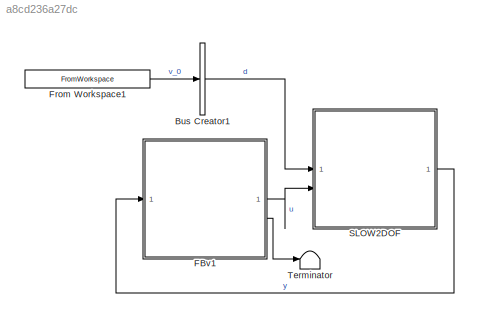
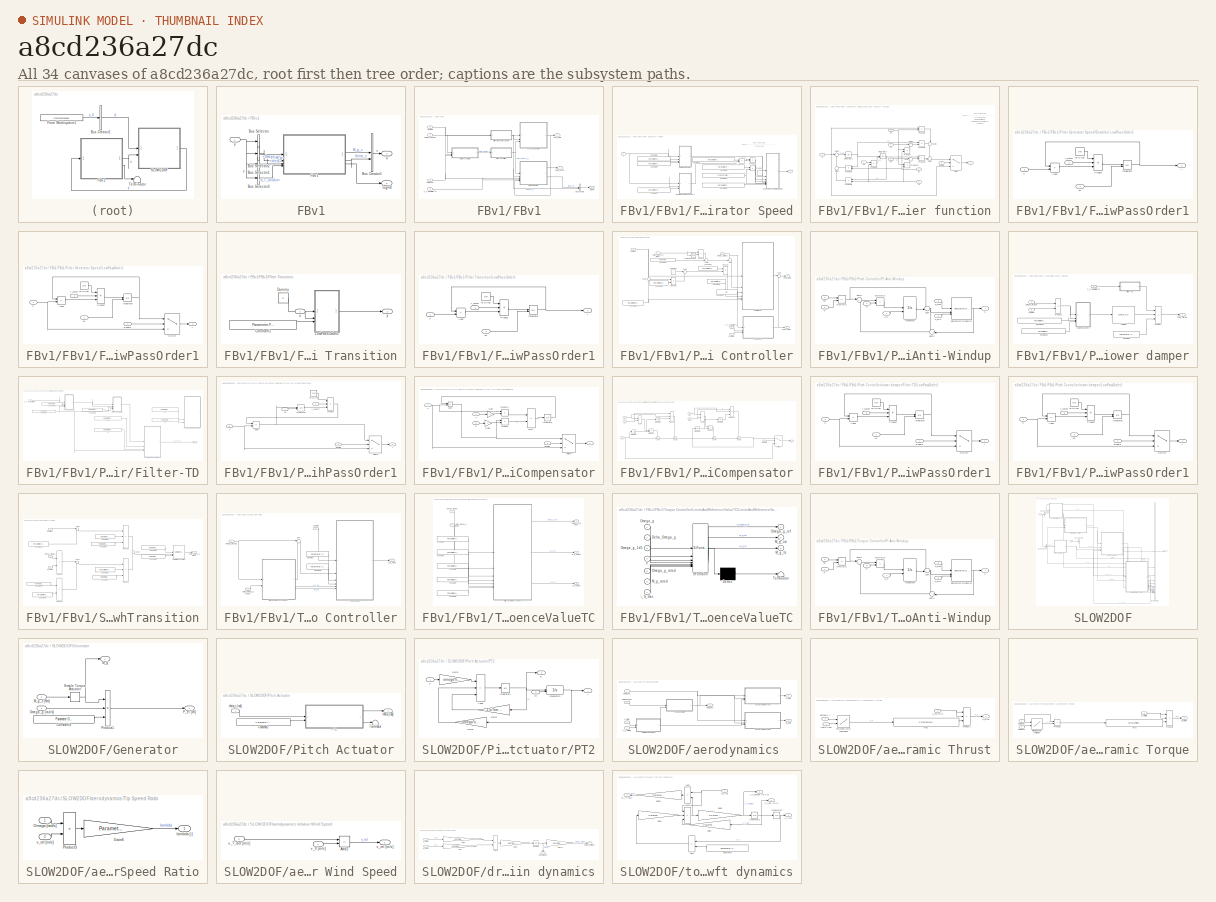
[diagram: thumbnail index - all 34 canvases of the model, root first then tree order]
MODEL mdl_a8cd236a27dc
KIND model
CONFIG AbsTol = auto
CONFIG EnableMultiTasking = off
CONFIG FixedStep = Parameter.Time.dt
CONFIG MaxStep = auto
CONFIG MinStep = auto
CONFIG RelTol = 1e-3
CONFIG SampleTimeConstraint = Unconstrained
CONFIG SolverName = FixedStepAuto
CONFIG StartTime = 0.0
CONFIG StopTime = Parameter.Time.TMax
BLOCK [BusCreator] Bus Creator1
  DisplayOption = bar
  InheritFromInputs = on
  Inputs = 1
BLOCK [SubSystem] FBv1
BLOCK [BusCreator] FBv1/Bus Creator1
  DisplayOption = bar
  InheritFromInputs = on
  Inputs = 2
BLOCK [BusSelector] FBv1/Bus Selector
  OutputSignals = Omega_g
BLOCK [BusSelector] FBv1/Bus Selector1
  OutputSignals = theta
BLOCK [BusSelector] FBv1/Bus Selector2
  OutputSignals = M_g
BLOCK [BusSelector] FBv1/Bus Selector3
  OutputSignals = x_T_dotdot
BLOCK [SubSystem] FBv1/FBv1
BLOCK [BusCreator] FBv1/FBv1/Bus Creator
  DisplayOption = bar
  InheritFromInputs = on
  Inputs = 2
BLOCK [SubSystem] FBv1/FBv1/Filter Generator Speed
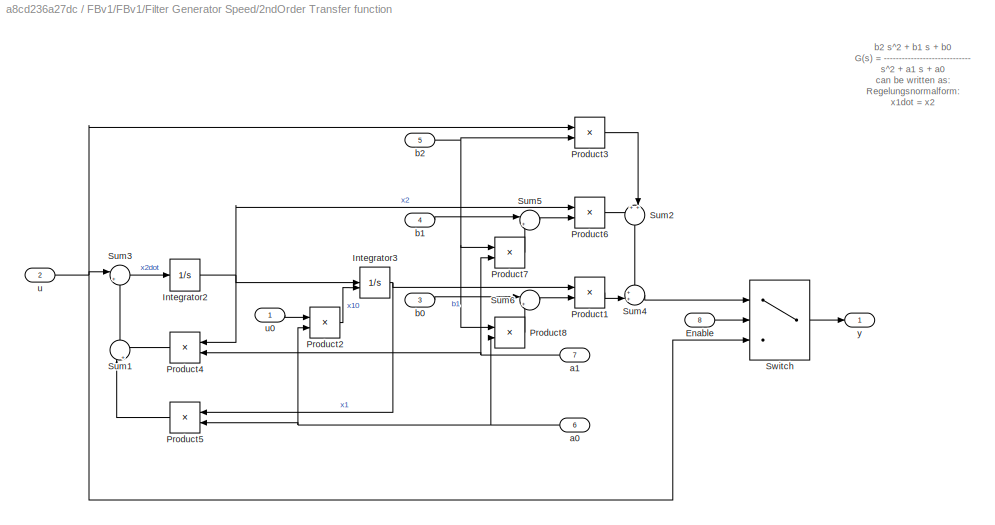
BLOCK [SubSystem] FBv1/FBv1/Filter Generator Speed/2ndOrder Transfer function
BLOCK [Inport] FBv1/FBv1/Filter Generator Speed/2ndOrder Transfer function/Enable
  Port = 8
BLOCK [Integrator] FBv1/FBv1/Filter Generator Speed/2ndOrder Transfer function/Integrator2
BLOCK [Integrator] FBv1/FBv1/Filter Generator Speed/2ndOrder Transfer function/Integrator3
  InitialConditionSource = external
BLOCK [Product] FBv1/FBv1/Filter Generator Speed/2ndOrder Transfer function/Product1
  RndMeth = Zero
BLOCK [Product] FBv1/FBv1/Filter Generator Speed/2ndOrder Transfer function/Product2
  Inputs = */
  NameLocation = top
  RndMeth = Zero
BLOCK [Product] FBv1/FBv1/Filter Generator Speed/2ndOrder Transfer function/Product3
  RndMeth = Zero
BLOCK [Product] FBv1/FBv1/Filter Generator Speed/2ndOrder Transfer function/Product4
  NameLocation = top
  RndMeth = Zero
BLOCK [Product] FBv1/FBv1/Filter Generator Speed/2ndOrder Transfer function/Product5
  NameLocation = top
  RndMeth = Zero
BLOCK [Product] FBv1/FBv1/Filter Generator Speed/2ndOrder Transfer function/Product6
  RndMeth = Zero
BLOCK [Product] FBv1/FBv1/Filter Generator Speed/2ndOrder Transfer function/Product7
  RndMeth = Zero
BLOCK [Product] FBv1/FBv1/Filter Generator Speed/2ndOrder Transfer function/Product8
  RndMeth = Zero
BLOCK [Sum] FBv1/FBv1/Filter Generator Speed/2ndOrder Transfer function/Sum1
  Inputs = |++
  NameLocation = left
BLOCK [Sum] FBv1/FBv1/Filter Generator Speed/2ndOrder Transfer function/Sum2
  Inputs = ++|
  NameLocation = left
BLOCK [Sum] FBv1/FBv1/Filter Generator Speed/2ndOrder Transfer function/Sum3
  Inputs = |+-
BLOCK [Sum] FBv1/FBv1/Filter Generator Speed/2ndOrder Transfer function/Sum4
  Inputs = ++|
BLOCK [Sum] FBv1/FBv1/Filter Generator Speed/2ndOrder Transfer function/Sum5
  Inputs = |+-
BLOCK [Sum] FBv1/FBv1/Filter Generator Speed/2ndOrder Transfer function/Sum6
  Inputs = |+-
BLOCK [Switch] FBv1/FBv1/Filter Generator Speed/2ndOrder Transfer function/Switch
  Criteria = u2 > Threshold
  InputSameDT = off
  SaturateOnIntegerOverflow = off
  Threshold = 0.5
BLOCK [Inport] FBv1/FBv1/Filter Generator Speed/2ndOrder Transfer function/a0
  Port = 6
BLOCK [Inport] FBv1/FBv1/Filter Generator Speed/2ndOrder Transfer function/a1
  Port = 7
BLOCK [Inport] FBv1/FBv1/Filter Generator Speed/2ndOrder Transfer function/b0
  Port = 3
BLOCK [Inport] FBv1/FBv1/Filter Generator Speed/2ndOrder Transfer function/b1
  Port = 4
BLOCK [Inport] FBv1/FBv1/Filter Generator Speed/2ndOrder Transfer function/b2
  Port = 5
BLOCK [Inport] FBv1/FBv1/Filter Generator Speed/2ndOrder Transfer function/u
  Port = 2
BLOCK [Inport] FBv1/FBv1/Filter Generator Speed/2ndOrder Transfer function/u0
BLOCK [Outport] FBv1/FBv1/Filter Generator Speed/2ndOrder Transfer function/y
BLOCK [Constant] FBv1/FBv1/Filter Generator Speed/Constant
BLOCK [Constant] FBv1/FBv1/Filter Generator Speed/Constant1
  Value = Parameter.Filter.LowPass.f_cutoff
BLOCK [Constant] FBv1/FBv1/Filter Generator Speed/Constant2
  Value = Parameter.Filter.NotchFilter.Gain
BLOCK [Constant] FBv1/FBv1/Filter Generator Speed/Constant3
  Value = Parameter.Filter.LowPass.Enable
BLOCK [Constant] FBv1/FBv1/Filter Generator Speed/Constant4
  Value = 2*pi*Parameter.Filter.NotchFilter.BW
BLOCK [Constant] FBv1/FBv1/Filter Generator Speed/Constant5
  Value = Parameter.Filter.NotchFilter.Enable
BLOCK [Constant] FBv1/FBv1/Filter Generator Speed/Constant6
  Value = Parameter.Filter.NotchFilter.D
BLOCK [Constant] FBv1/FBv1/Filter Generator Speed/Constant7
  Value = Parameter.Filter.LowPass3.f_cutoff
BLOCK [SubSystem] FBv1/FBv1/Filter Generator Speed/Enabled LowPassOrder1
BLOCK [Sum] FBv1/FBv1/Filter Generator Speed/Enabled LowPassOrder1/Add3
  IconShape = rectangular
  Inputs = -+
BLOCK [Integrator] FBv1/FBv1/Filter Generator Speed/Enabled LowPassOrder1/Integrator
  InitialConditionSource = external
BLOCK [Product] FBv1/FBv1/Filter Generator Speed/Enabled LowPassOrder1/Product
  Inputs = 3
  RndMeth = Zero
BLOCK [Inport] FBv1/FBv1/Filter Generator Speed/Enabled LowPassOrder1/f_cutoff
  Port = 3
BLOCK [Constant] FBv1/FBv1/Filter Generator Speed/Enabled LowPassOrder1/hz to rad
  Value = 2*pi
BLOCK [Inport] FBv1/FBv1/Filter Generator Speed/Enabled LowPassOrder1/u
  Port = 2
BLOCK [Inport] FBv1/FBv1/Filter Generator Speed/Enabled LowPassOrder1/u0
BLOCK [Outport] FBv1/FBv1/Filter Generator Speed/Enabled LowPassOrder1/y
BLOCK [SubSystem] FBv1/FBv1/Filter Generator Speed/LowPassOrder1
BLOCK [Sum] FBv1/FBv1/Filter Generator Speed/LowPassOrder1/Add3
  IconShape = rectangular
  Inputs = -+
BLOCK [Inport] FBv1/FBv1/Filter Generator Speed/LowPassOrder1/Enable
  Port = 4
BLOCK [Integrator] FBv1/FBv1/Filter Generator Speed/LowPassOrder1/Integrator
  InitialConditionSource = external
BLOCK [Product] FBv1/FBv1/Filter Generator Speed/LowPassOrder1/Product
  Inputs = 3
  RndMeth = Zero
BLOCK [Switch] FBv1/FBv1/Filter Generator Speed/LowPassOrder1/Switch
  Criteria = u2 > Threshold
  InputSameDT = off
  SaturateOnIntegerOverflow = off
  Threshold = 0.5
BLOCK [Inport] FBv1/FBv1/Filter Generator Speed/LowPassOrder1/f_cutoff
  Port = 3
BLOCK [Constant] FBv1/FBv1/Filter Generator Speed/LowPassOrder1/hz to rad
  Value = 2*pi
BLOCK [Inport] FBv1/FBv1/Filter Generator Speed/LowPassOrder1/u
  Port = 2
BLOCK [Inport] FBv1/FBv1/Filter Generator Speed/LowPassOrder1/u0
BLOCK [Outport] FBv1/FBv1/Filter Generator Speed/LowPassOrder1/y
BLOCK [Product] FBv1/FBv1/Filter Generator Speed/Product
  RndMeth = Zero
BLOCK [Product] FBv1/FBv1/Filter Generator Speed/Product1
  RndMeth = Zero
BLOCK [Product] FBv1/FBv1/Filter Generator Speed/Product2
  RndMeth = Zero
BLOCK [Inport] FBv1/FBv1/Filter Generator Speed/u
BLOCK [Outport] FBv1/FBv1/Filter Generator Speed/y
BLOCK [SubSystem] FBv1/FBv1/Filter Transition
BLOCK [Constant] FBv1/FBv1/Filter Transition/Constant1
  Value = Parameter.Filter.LowPass2.f_cutoff
BLOCK [Constant] FBv1/FBv1/Filter Transition/Dummy
  Value = 0
BLOCK [SubSystem] FBv1/FBv1/Filter Transition/LowPassOrder1
BLOCK [Sum] FBv1/FBv1/Filter Transition/LowPassOrder1/Add3
  IconShape = rectangular
  Inputs = -+
BLOCK [Integrator] FBv1/FBv1/Filter Transition/LowPassOrder1/Integrator
  InitialConditionSource = external
BLOCK [Product] FBv1/FBv1/Filter Transition/LowPassOrder1/Product
  Inputs = 3
  RndMeth = Zero
BLOCK [Inport] FBv1/FBv1/Filter Transition/LowPassOrder1/f_cutoff
  Port = 3
BLOCK [Constant] FBv1/FBv1/Filter Transition/LowPassOrder1/hz to rad
  Value = 2*pi
BLOCK [Inport] FBv1/FBv1/Filter Transition/LowPassOrder1/u
  Port = 2
BLOCK [Inport] FBv1/FBv1/Filter Transition/LowPassOrder1/u0
BLOCK [Outport] FBv1/FBv1/Filter Transition/LowPassOrder1/y
BLOCK [Inport] FBv1/FBv1/Filter Transition/u
BLOCK [Outport] FBv1/FBv1/Filter Transition/y
BLOCK [Inport] FBv1/FBv1/M_g [Nm]
  Port = 2
BLOCK [Outport] FBv1/FBv1/M_g_c [Nm]
BLOCK [Inport] FBv1/FBv1/Omega_g [rad//s]
BLOCK [SubSystem] FBv1/FBv1/Pitch Controller
BLOCK [Reference] FBv1/FBv1/Pitch Controller/Compare To Zero  REF=simulink/Logic and Bit
Operations/Compare
To Zero
  SourceBlock = simulink/Logic and Bit\nOperations/Compare\nTo Zero
  SourceType = Compare To Zero
BLOCK [Constant] FBv1/FBv1/Pitch Controller/Constant
BLOCK [Constant] FBv1/FBv1/Pitch Controller/Constant1
  Value = Parameter.CPC.Ti
BLOCK [Constant] FBv1/FBv1/Pitch Controller/Constant2
  Value = Parameter.CPC.theta_min
BLOCK [Constant] FBv1/FBv1/Pitch Controller/Constant3
  Value = inf
BLOCK [Constant] FBv1/FBv1/Pitch Controller/Constant4
  Value = Parameter.CPC.Omega_g_rated
BLOCK [Constant] FBv1/FBv1/Pitch Controller/Constant5
  Value = Parameter.CPC.kp
BLOCK [Constant] FBv1/FBv1/Pitch Controller/Constant6
  Value = Parameter.CPC.theta_K
BLOCK [Inport] FBv1/FBv1/Pitch Controller/Delta_Omega_g [rad//s]
BLOCK [Inport] FBv1/FBv1/Pitch Controller/M_g [Nm]
  Port = 5
BLOCK [Inport] FBv1/FBv1/Pitch Controller/Omega_g [rad//s]
  Port = 2
BLOCK [SubSystem] FBv1/FBv1/Pitch Controller/PI Anti-Windup
BLOCK [Integrator] FBv1/FBv1/Pitch Controller/PI Anti-Windup/Integrator
  InitialConditionSource = external
BLOCK [Product] FBv1/FBv1/Pitch Controller/PI Anti-Windup/Multiply1
  Inputs = **
BLOCK [Product] FBv1/FBv1/Pitch Controller/PI Anti-Windup/Multiply3
  Inputs = */
BLOCK [Reference] FBv1/FBv1/Pitch Controller/PI Anti-Windup/Saturation Dynamic1  REF=simulink/Discontinuities/Saturation
Dynamic
  SourceBlock = simulink/Discontinuities/Saturation\nDynamic
  SourceType = Saturation Dynamic
BLOCK [Sum] FBv1/FBv1/Pitch Controller/PI Anti-Windup/Sum
  Inputs = ++|
BLOCK [Sum] FBv1/FBv1/Pitch Controller/PI Anti-Windup/Sum1
  Inputs = -+|
  NameLocation = top
BLOCK [Sum] FBv1/FBv1/Pitch Controller/PI Anti-Windup/Sum2
  Inputs = |++
BLOCK [Inport] FBv1/FBv1/Pitch Controller/PI Anti-Windup/Ti
  Port = 4
BLOCK [Inport] FBv1/FBv1/Pitch Controller/PI Anti-Windup/e
  Port = 2
BLOCK [Inport] FBv1/FBv1/Pitch Controller/PI Anti-Windup/kp
  Port = 3
BLOCK [Outport] FBv1/FBv1/Pitch Controller/PI Anti-Windup/u
BLOCK [Inport] FBv1/FBv1/Pitch Controller/PI Anti-Windup/u_max
  NameLocation = top
  Port = 5
BLOCK [Inport] FBv1/FBv1/Pitch Controller/PI Anti-Windup/u_min
  Port = 6
BLOCK [Inport] FBv1/FBv1/Pitch Controller/PI Anti-Windup/x_0
BLOCK [Product] FBv1/FBv1/Pitch Controller/Product1
  Inputs = */
BLOCK [Product] FBv1/FBv1/Pitch Controller/Product2
  Inputs = */
BLOCK [Product] FBv1/FBv1/Pitch Controller/Product3
BLOCK [Sum] FBv1/FBv1/Pitch Controller/Sum
  Inputs = +-|
BLOCK [Sum] FBv1/FBv1/Pitch Controller/Sum1
  Inputs = +|-
BLOCK [Sum] FBv1/FBv1/Pitch Controller/Sum2
  Inputs = -+|
BLOCK [Sum] FBv1/FBv1/Pitch Controller/Sum3
  Inputs = |++
BLOCK [Sum] FBv1/FBv1/Pitch Controller/Sum4
  Inputs = |++
BLOCK [Inport] FBv1/FBv1/Pitch Controller/theta [rad]
  Port = 3
BLOCK [Outport] FBv1/FBv1/Pitch Controller/theta_TD [rad]
  Port = 2
  VectorParamsAs1DForOutWhenUnconnected = off
BLOCK [Outport] FBv1/FBv1/Pitch Controller/theta_c [rad]
BLOCK [SubSystem] FBv1/FBv1/Pitch Controller/tower damper
BLOCK [Lookup_n-D] FBv1/FBv1/Pitch Controller/tower damper/Activation
  BreakpointsForDimension1 = Parameter.TD.Power
  ExtrapMethod = Clip
  IndexSearchMethod = Linear search
  InputPortMap = u0
  InternalRulePriority = Speed
  NumberOfTableDimensions = 1
  RndMeth = Simplest
  Table = Parameter.TD.Value
  UseLastTableValue = on
BLOCK [Constant] FBv1/FBv1/Pitch Controller/tower damper/Constant1
  Value = Parameter.TD.gain
BLOCK [Constant] FBv1/FBv1/Pitch Controller/tower damper/Constant10
  Value = Parameter.Filter.LowPassTowerDamper.f_cutoff
BLOCK [Constant] FBv1/FBv1/Pitch Controller/tower damper/Constant11
  Value = Parameter.Filter.LowPassTowerDamper.Enable
BLOCK [SubSystem] FBv1/FBv1/Pitch Controller/tower damper/Filter-TD
BLOCK [Constant] FBv1/FBv1/Pitch Controller/tower damper/Filter-TD/Constant
  Value = Parameter.TD.RealTD.Enable
BLOCK [Constant] FBv1/FBv1/Pitch Controller/tower damper/Filter-TD/Constant1
  Value = Parameter.TD.LowPass.f_cutoff
BLOCK [Constant] FBv1/FBv1/Pitch Controller/tower damper/Filter-TD/Constant2
  Value = Parameter.TD.HighPass.f_cutoff
BLOCK [SubSystem] FBv1/FBv1/Pitch Controller/tower damper/Filter-TD/HighPassOrder1
BLOCK [Sum] FBv1/FBv1/Pitch Controller/tower damper/Filter-TD/HighPassOrder1/Add3
  IconShape = rectangular
  Inputs = -+
BLOCK [Inport] FBv1/FBv1/Pitch Controller/tower damper/Filter-TD/HighPassOrder1/Enable
  Port = 3
BLOCK [Integrator] FBv1/FBv1/Pitch Controller/tower damper/Filter-TD/HighPassOrder1/Integrator
  InitialConditionSource = external
BLOCK [Product] FBv1/FBv1/Pitch Controller/tower damper/Filter-TD/HighPassOrder1/Product
  Inputs = 3
  RndMeth = Zero
BLOCK [Switch] FBv1/FBv1/Pitch Controller/tower damper/Filter-TD/HighPassOrder1/Switch
  Criteria = u2 > Threshold
  InputSameDT = off
  SaturateOnIntegerOverflow = off
  Threshold = 0.5
BLOCK [Inport] FBv1/FBv1/Pitch Controller/tower damper/Filter-TD/HighPassOrder1/f_cutoff
  Port = 4
BLOCK [Constant] FBv1/FBv1/Pitch Controller/tower damper/Filter-TD/HighPassOrder1/hz to rad
  Value = 2*pi
BLOCK [Inport] FBv1/FBv1/Pitch Controller/tower damper/Filter-TD/HighPassOrder1/u
  Port = 2
BLOCK [Inport] FBv1/FBv1/Pitch Controller/tower damper/Filter-TD/HighPassOrder1/u0
BLOCK [Outport] FBv1/FBv1/Pitch Controller/tower damper/Filter-TD/HighPassOrder1/y
  VectorParamsAs1DForOutWhenUnconnected = off
BLOCK [SubSystem] FBv1/FBv1/Pitch Controller/tower damper/Filter-TD/Lag-Compensator
BLOCK [Inport] FBv1/FBv1/Pitch Controller/tower damper/Filter-TD/Lag-Compensator/Enable
  Port = 4
BLOCK [Gain] FBv1/FBv1/Pitch Controller/tower damper/Filter-TD/Lag-Compensator/Gain
  Gain = -1
BLOCK [Gain] FBv1/FBv1/Pitch Controller/tower damper/Filter-TD/Lag-Compensator/Gain1
  Gain = -1
BLOCK [Integrator] FBv1/FBv1/Pitch Controller/tower damper/Filter-TD/Lag-Compensator/Integrator
BLOCK [Product] FBv1/FBv1/Pitch Controller/tower damper/Filter-TD/Lag-Compensator/Product
BLOCK [Product] FBv1/FBv1/Pitch Controller/tower damper/Filter-TD/Lag-Compensator/Product1
BLOCK [Sum] FBv1/FBv1/Pitch Controller/tower damper/Filter-TD/Lag-Compensator/Sum
  IconShape = rectangular
  Inputs = -+
BLOCK [Sum] FBv1/FBv1/Pitch Controller/tower damper/Filter-TD/Lag-Compensator/Sum1
  IconShape = rectangular
  Inputs = -+
BLOCK [Switch] FBv1/FBv1/Pitch Controller/tower damper/Filter-TD/Lag-Compensator/Switch
  Criteria = u2 > Threshold
  InputSameDT = off
  SaturateOnIntegerOverflow = off
  Threshold = 0.5
BLOCK [Inport] FBv1/FBv1/Pitch Controller/tower damper/Filter-TD/Lag-Compensator/X
BLOCK [Inport] FBv1/FBv1/Pitch Controller/tower damper/Filter-TD/Lag-Compensator/p
  Port = 2
BLOCK [Outport] FBv1/FBv1/Pitch Controller/tower damper/Filter-TD/Lag-Compensator/y
BLOCK [Inport] FBv1/FBv1/Pitch Controller/tower damper/Filter-TD/Lag-Compensator/z
  Port = 3
BLOCK [SubSystem] FBv1/FBv1/Pitch Controller/tower damper/Filter-TD/Lead-Lag-Compensator
  Commented = on
BLOCK [Inport] FBv1/FBv1/Pitch Controller/tower damper/Filter-TD/Lead-Lag-Compensator/Enable
  Port = 6
BLOCK [Integrator] FBv1/FBv1/Pitch Controller/tower damper/Filter-TD/Lead-Lag-Compensator/Integrator
BLOCK [Integrator] FBv1/FBv1/Pitch Controller/tower damper/Filter-TD/Lead-Lag-Compensator/Integrator1
BLOCK [Integrator] FBv1/FBv1/Pitch Controller/tower damper/Filter-TD/Lead-Lag-Compensator/Integrator2
BLOCK [Integrator] FBv1/FBv1/Pitch Controller/tower damper/Filter-TD/Lead-Lag-Compensator/Integrator3
BLOCK [Product] FBv1/FBv1/Pitch Controller/tower damper/Filter-TD/Lead-Lag-Compensator/Product
BLOCK [Product] FBv1/FBv1/Pitch Controller/tower damper/Filter-TD/Lead-Lag-Compensator/Product1
  Inputs = 3
BLOCK [Product] FBv1/FBv1/Pitch Controller/tower damper/Filter-TD/Lead-Lag-Compensator/Product2
BLOCK [Product] FBv1/FBv1/Pitch Controller/tower damper/Filter-TD/Lead-Lag-Compensator/Product3
  Inputs = 3
BLOCK [Sum] FBv1/FBv1/Pitch Controller/tower damper/Filter-TD/Lead-Lag-Compensator/Sum
  Inputs = -+|
BLOCK [Sum] FBv1/FBv1/Pitch Controller/tower damper/Filter-TD/Lead-Lag-Compensator/Sum1
  IconShape = rectangular
BLOCK [Sum] FBv1/FBv1/Pitch Controller/tower damper/Filter-TD/Lead-Lag-Compensator/Sum2
  Inputs = ++|
BLOCK [Sum] FBv1/FBv1/Pitch Controller/tower damper/Filter-TD/Lead-Lag-Compensator/Sum3
  IconShape = rectangular
BLOCK [Sum] FBv1/FBv1/Pitch Controller/tower damper/Filter-TD/Lead-Lag-Compensator/Sum4
  Inputs = ++|
BLOCK [Sum] FBv1/FBv1/Pitch Controller/tower damper/Filter-TD/Lead-Lag-Compensator/Sum5
  Inputs = -+|
BLOCK [Switch] FBv1/FBv1/Pitch Controller/tower damper/Filter-TD/Lead-Lag-Compensator/Switch
  Criteria = u2 > Threshold
  InputSameDT = off
  SaturateOnIntegerOverflow = off
  Threshold = 0.5
BLOCK [Inport] FBv1/FBv1/Pitch Controller/tower damper/Filter-TD/Lead-Lag-Compensator/X
BLOCK [Outport] FBv1/FBv1/Pitch Controller/tower damper/Filter-TD/Lead-Lag-Compensator/Y
BLOCK [Inport] FBv1/FBv1/Pitch Controller/tower damper/Filter-TD/Lead-Lag-Compensator/p1
  Port = 2
BLOCK [Inport] FBv1/FBv1/Pitch Controller/tower damper/Filter-TD/Lead-Lag-Compensator/p2
  Port = 3
BLOCK [Inport] FBv1/FBv1/Pitch Controller/tower damper/Filter-TD/Lead-Lag-Compensator/z1
  Port = 4
BLOCK [Inport] FBv1/FBv1/Pitch Controller/tower damper/Filter-TD/Lead-Lag-Compensator/z2
  Port = 5
BLOCK [SubSystem] FBv1/FBv1/Pitch Controller/tower damper/Filter-TD/LowPassOrder1
BLOCK [Sum] FBv1/FBv1/Pitch Controller/tower damper/Filter-TD/LowPassOrder1/Add3
  IconShape = rectangular
  Inputs = -+
BLOCK [Inport] FBv1/FBv1/Pitch Controller/tower damper/Filter-TD/LowPassOrder1/Enable
  Port = 4
BLOCK [Integrator] FBv1/FBv1/Pitch Controller/tower damper/Filter-TD/LowPassOrder1/Integrator
  InitialConditionSource = external
BLOCK [Product] FBv1/FBv1/Pitch Controller/tower damper/Filter-TD/LowPassOrder1/Product
  Inputs = 3
  RndMeth = Zero
BLOCK [Switch] FBv1/FBv1/Pitch Controller/tower damper/Filter-TD/LowPassOrder1/Switch
  Criteria = u2 > Threshold
  InputSameDT = off
  SaturateOnIntegerOverflow = off
  Threshold = 0.5
BLOCK [Inport] FBv1/FBv1/Pitch Controller/tower damper/Filter-TD/LowPassOrder1/f_cutoff
  Port = 3
BLOCK [Constant] FBv1/FBv1/Pitch Controller/tower damper/Filter-TD/LowPassOrder1/hz to rad
  Value = 2*pi
BLOCK [Inport] FBv1/FBv1/Pitch Controller/tower damper/Filter-TD/LowPassOrder1/u
  Port = 2
BLOCK [Inport] FBv1/FBv1/Pitch Controller/tower damper/Filter-TD/LowPassOrder1/u0
BLOCK [Outport] FBv1/FBv1/Pitch Controller/tower damper/Filter-TD/LowPassOrder1/y
  VectorParamsAs1DForOutWhenUnconnected = off
BLOCK [Constant] FBv1/FBv1/Pitch Controller/tower damper/Filter-TD/p1
  Value = Parameter.TD.LeadLagCompensator.Pole1
BLOCK [Constant] FBv1/FBv1/Pitch Controller/tower damper/Filter-TD/p2
  Commented = on
  Value = Parameter.TD.LeadLagCompensator.Pole2
BLOCK [Inport] FBv1/FBv1/Pitch Controller/tower damper/Filter-TD/x_T_dotdot [m//s^2]
BLOCK [Outport] FBv1/FBv1/Pitch Controller/tower damper/Filter-TD/y
BLOCK [Constant] FBv1/FBv1/Pitch Controller/tower damper/Filter-TD/z1
  Value = Parameter.TD.LeadLagCompensator.Zero1
BLOCK [Constant] FBv1/FBv1/Pitch Controller/tower damper/Filter-TD/z2
  Commented = on
  Value = Parameter.TD.LeadLagCompensator.Zero2
BLOCK [SubSystem] FBv1/FBv1/Pitch Controller/tower damper/LowPassOrder1
BLOCK [Sum] FBv1/FBv1/Pitch Controller/tower damper/LowPassOrder1/Add3
  IconShape = rectangular
  Inputs = -+
BLOCK [Inport] FBv1/FBv1/Pitch Controller/tower damper/LowPassOrder1/Enable
  Port = 4
BLOCK [Integrator] FBv1/FBv1/Pitch Controller/tower damper/LowPassOrder1/Integrator
  InitialConditionSource = external
BLOCK [Product] FBv1/FBv1/Pitch Controller/tower damper/LowPassOrder1/Product
  Inputs = 3
  RndMeth = Zero
BLOCK [Switch] FBv1/FBv1/Pitch Controller/tower damper/LowPassOrder1/Switch
  Criteria = u2 > Threshold
  InputSameDT = off
  SaturateOnIntegerOverflow = off
  Threshold = 0.5
BLOCK [Inport] FBv1/FBv1/Pitch Controller/tower damper/LowPassOrder1/f_cutoff
  Port = 3
BLOCK [Constant] FBv1/FBv1/Pitch Controller/tower damper/LowPassOrder1/hz to rad
  Value = 2*pi
BLOCK [Inport] FBv1/FBv1/Pitch Controller/tower damper/LowPassOrder1/u
  Port = 2
BLOCK [Inport] FBv1/FBv1/Pitch Controller/tower damper/LowPassOrder1/u0
BLOCK [Outport] FBv1/FBv1/Pitch Controller/tower damper/LowPassOrder1/y
  VectorParamsAs1DForOutWhenUnconnected = off
BLOCK [Inport] FBv1/FBv1/Pitch Controller/tower damper/M_g [Nm]
  Port = 3
BLOCK [Inport] FBv1/FBv1/Pitch Controller/tower damper/Omega_g [rad//s]
BLOCK [Product] FBv1/FBv1/Pitch Controller/tower damper/Product
  Inputs = 3
BLOCK [Product] FBv1/FBv1/Pitch Controller/tower damper/Product1
  Inputs = **
  RndMeth = Zero
BLOCK [Outport] FBv1/FBv1/Pitch Controller/tower damper/theta_TD [rad]
BLOCK [Inport] FBv1/FBv1/Pitch Controller/tower damper/x_T_dotdot [m//s^2]
  Port = 2
BLOCK [Inport] FBv1/FBv1/Pitch Controller/x_T_dotdot [m//s^2]
  Port = 4
BLOCK [SubSystem] FBv1/FBv1/SwitchTransition
BLOCK [Constant] FBv1/FBv1/SwitchTransition/Constant1
  Value = Parameter.VSC.Delta_P
BLOCK [Constant] FBv1/FBv1/SwitchTransition/Constant2
  Value = Parameter.VSC.M_g_rated
BLOCK [Constant] FBv1/FBv1/SwitchTransition/Constant3
  Value = Parameter.CPC.Omega_g_rated
BLOCK [Constant] FBv1/FBv1/SwitchTransition/Constant4
  Value = Parameter.CPC.theta_min
BLOCK [Constant] FBv1/FBv1/SwitchTransition/Constant5
  Value = Parameter.VSC.Delta_theta
BLOCK [Constant] FBv1/FBv1/SwitchTransition/Constant6
  Value = Parameter.VSC.Delta_Omega_g
BLOCK [Constant] FBv1/FBv1/SwitchTransition/Constant7
  Value = Parameter.VSC.Delta_Omega_g
BLOCK [Constant] FBv1/FBv1/SwitchTransition/Constant8
  Value = Parameter.VSC.Delta_Omega_g
BLOCK [Constant] FBv1/FBv1/SwitchTransition/Constant9
  Value = -Parameter.VSC.Delta_Omega_g
BLOCK [Outport] FBv1/FBv1/SwitchTransition/Delta_Omega_g [rad//s]
BLOCK [Inport] FBv1/FBv1/SwitchTransition/M_g [Nm]
  Port = 2
BLOCK [Inport] FBv1/FBv1/SwitchTransition/Omega_g [rad//s]
BLOCK [Product] FBv1/FBv1/SwitchTransition/Product1
  Inputs = */*
  RndMeth = Zero
BLOCK [Product] FBv1/FBv1/SwitchTransition/Product2
  Inputs = */*
  RndMeth = Zero
BLOCK [Product] FBv1/FBv1/SwitchTransition/Product3
  RndMeth = Zero
BLOCK [Product] FBv1/FBv1/SwitchTransition/Product4
  RndMeth = Zero
BLOCK [Reference] FBv1/FBv1/SwitchTransition/Saturation Dynamic1  REF=simulink/Discontinuities/Saturation
Dynamic
  SourceBlock = simulink/Discontinuities/Saturation\nDynamic
  SourceType = Saturation Dynamic
BLOCK [Sum] FBv1/FBv1/SwitchTransition/Sum1
  Inputs = +|-
BLOCK [Sum] FBv1/FBv1/SwitchTransition/Sum3
  Inputs = |+-
BLOCK [Sum] FBv1/FBv1/SwitchTransition/Sum5
  Inputs = |-+
BLOCK [Inport] FBv1/FBv1/SwitchTransition/theta [rad]
  Port = 3
BLOCK [SubSystem] FBv1/FBv1/Torque Controller
BLOCK [Constant] FBv1/FBv1/Torque Controller/Constant
  Value = Parameter.VSC.kp
BLOCK [Constant] FBv1/FBv1/Torque Controller/Constant1
  Value = Parameter.VSC.Ti
BLOCK [Inport] FBv1/FBv1/Torque Controller/Delta_Omega_g [rad//s]
  Port = 3
BLOCK [SubSystem] FBv1/FBv1/Torque Controller/LimitsAndReferenceValueTC
BLOCK [Constant] FBv1/FBv1/Torque Controller/LimitsAndReferenceValueTC/Constant1
  Value = Parameter.VSC.Omega_g_1d5
BLOCK [Constant] FBv1/FBv1/Torque Controller/LimitsAndReferenceValueTC/Constant2
  Value = Parameter.VSC.M_g_rated
BLOCK [Constant] FBv1/FBv1/Torque Controller/LimitsAndReferenceValueTC/Constant3
  Value = Parameter.VSC.k
BLOCK [Constant] FBv1/FBv1/Torque Controller/LimitsAndReferenceValueTC/Constant5
  Value = Parameter.CPC.Omega_g_rated
BLOCK [Constant] FBv1/FBv1/Torque Controller/LimitsAndReferenceValueTC/Constant6
  Value = Parameter.VSC.i_G_max
BLOCK [Inport] FBv1/FBv1/Torque Controller/LimitsAndReferenceValueTC/Delta_Omega_g [rad//s]
  Port = 2
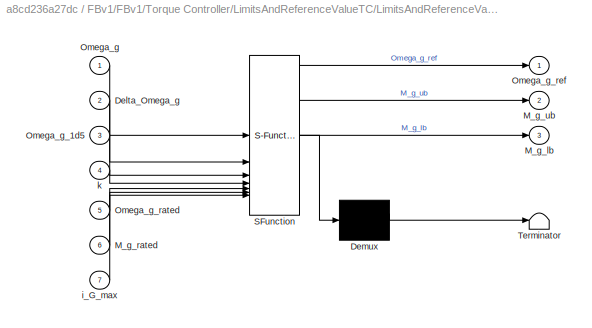
BLOCK [SubSystem] FBv1/FBv1/Torque Controller/LimitsAndReferenceValueTC/LimitsAndReferenceValueTC
  ErrorFcn = Stateflow.Translate.translate
  PermitHierarchicalResolution = ExplicitOnly
  SFBlockType = MATLAB Function
  TreatAsAtomicUnit = on
BLOCK [Demux] FBv1/FBv1/Torque Controller/LimitsAndReferenceValueTC/LimitsAndReferenceValueTC/ Demux 
  Outputs = 1
BLOCK [S-Function] FBv1/FBv1/Torque Controller/LimitsAndReferenceValueTC/LimitsAndReferenceValueTC/ SFunction 
  EnableBusSupport = on
  FunctionName = sf_sfun
  PortCounts = [7 4]
  SFcnIsStateOwnerBlock = off
  SFunctionDeploymentMode = off
  Tag = Stateflow S-Function 5
BLOCK [Terminator] FBv1/FBv1/Torque Controller/LimitsAndReferenceValueTC/LimitsAndReferenceValueTC/ Terminator 
BLOCK [Inport] FBv1/FBv1/Torque Controller/LimitsAndReferenceValueTC/LimitsAndReferenceValueTC/Delta_Omega_g
  Port = 2
BLOCK [Outport] FBv1/FBv1/Torque Controller/LimitsAndReferenceValueTC/LimitsAndReferenceValueTC/M_g_lb
  Port = 3
BLOCK [Inport] FBv1/FBv1/Torque Controller/LimitsAndReferenceValueTC/LimitsAndReferenceValueTC/M_g_rated
  Port = 6
BLOCK [Outport] FBv1/FBv1/Torque Controller/LimitsAndReferenceValueTC/LimitsAndReferenceValueTC/M_g_ub
  Port = 2
BLOCK [Inport] FBv1/FBv1/Torque Controller/LimitsAndReferenceValueTC/LimitsAndReferenceValueTC/Omega_g
BLOCK [Inport] FBv1/FBv1/Torque Controller/LimitsAndReferenceValueTC/LimitsAndReferenceValueTC/Omega_g_1d5
  Port = 3
BLOCK [Inport] FBv1/FBv1/Torque Controller/LimitsAndReferenceValueTC/LimitsAndReferenceValueTC/Omega_g_rated
  Port = 5
BLOCK [Outport] FBv1/FBv1/Torque Controller/LimitsAndReferenceValueTC/LimitsAndReferenceValueTC/Omega_g_ref
BLOCK [Inport] FBv1/FBv1/Torque Controller/LimitsAndReferenceValueTC/LimitsAndReferenceValueTC/i_G_max
  Port = 7
BLOCK [Inport] FBv1/FBv1/Torque Controller/LimitsAndReferenceValueTC/LimitsAndReferenceValueTC/k
  Port = 4
BLOCK [Outport] FBv1/FBv1/Torque Controller/LimitsAndReferenceValueTC/M_g_lb [Nm]
  Port = 3
BLOCK [Outport] FBv1/FBv1/Torque Controller/LimitsAndReferenceValueTC/M_g_ub [Nm]
  Port = 2
BLOCK [Inport] FBv1/FBv1/Torque Controller/LimitsAndReferenceValueTC/Omega_g [rad//s]
BLOCK [Outport] FBv1/FBv1/Torque Controller/LimitsAndReferenceValueTC/Omega_g_ref [rad//s]
BLOCK [Inport] FBv1/FBv1/Torque Controller/M_g [Nm]
BLOCK [Outport] FBv1/FBv1/Torque Controller/M_g_c [Nm]
BLOCK [Inport] FBv1/FBv1/Torque Controller/Omega_g [rad//s]
  Port = 2
BLOCK [SubSystem] FBv1/FBv1/Torque Controller/PI Anti-Windup
BLOCK [Integrator] FBv1/FBv1/Torque Controller/PI Anti-Windup/Integrator
  InitialConditionSource = external
BLOCK [Product] FBv1/FBv1/Torque Controller/PI Anti-Windup/Multiply1
  Inputs = **
BLOCK [Product] FBv1/FBv1/Torque Controller/PI Anti-Windup/Multiply3
  Inputs = */
BLOCK [Reference] FBv1/FBv1/Torque Controller/PI Anti-Windup/Saturation Dynamic1  REF=simulink/Discontinuities/Saturation
Dynamic
  SourceBlock = simulink/Discontinuities/Saturation\nDynamic
  SourceType = Saturation Dynamic
BLOCK [Sum] FBv1/FBv1/Torque Controller/PI Anti-Windup/Sum
  Inputs = ++|
BLOCK [Sum] FBv1/FBv1/Torque Controller/PI Anti-Windup/Sum1
  Inputs = -+|
  NameLocation = top
BLOCK [Sum] FBv1/FBv1/Torque Controller/PI Anti-Windup/Sum2
  Inputs = |++
BLOCK [Inport] FBv1/FBv1/Torque Controller/PI Anti-Windup/Ti
  Port = 4
BLOCK [Inport] FBv1/FBv1/Torque Controller/PI Anti-Windup/e
  Port = 2
BLOCK [Inport] FBv1/FBv1/Torque Controller/PI Anti-Windup/kp
  Port = 3
BLOCK [Outport] FBv1/FBv1/Torque Controller/PI Anti-Windup/u
BLOCK [Inport] FBv1/FBv1/Torque Controller/PI Anti-Windup/u_max
  NameLocation = top
  Port = 5
BLOCK [Inport] FBv1/FBv1/Torque Controller/PI Anti-Windup/u_min
  Port = 6
BLOCK [Inport] FBv1/FBv1/Torque Controller/PI Anti-Windup/x_0
BLOCK [Sum] FBv1/FBv1/Torque Controller/Sum
  Inputs = |+-
BLOCK [Outport] FBv1/FBv1/logFB
  Port = 3
  VectorParamsAs1DForOutWhenUnconnected = off
BLOCK [Inport] FBv1/FBv1/theta [rad]
  Port = 3
BLOCK [Outport] FBv1/FBv1/theta_c [rad]
  Port = 2
BLOCK [Inport] FBv1/FBv1/x_T_dotdot [m//s^2]
  Port = 4
BLOCK [Outport] FBv1/logFB
  Port = 2
  VectorParamsAs1DForOutWhenUnconnected = off
BLOCK [Outport] FBv1/u
BLOCK [Inport] FBv1/y
BLOCK [FromWorkspace] From Workspace1
  VariableName = Disturbance.v_0
BLOCK [SubSystem] SLOW2DOF
BLOCK [BusCreator] SLOW2DOF/Bus Creator2
  DisplayOption = bar
  InheritFromInputs = on
  Inputs = 12
BLOCK [BusSelector] SLOW2DOF/Bus Selector
  OutputSignals = theta_c
BLOCK [BusSelector] SLOW2DOF/Bus Selector1
  OutputSignals = M_g_c
BLOCK [BusSelector] SLOW2DOF/Bus Selector3
  OutputSignals = v_0
BLOCK [SubSystem] SLOW2DOF/Generator
BLOCK [Constant] SLOW2DOF/Generator/Constant3
  Value = Parameter.Generator.eta_el
BLOCK [Outport] SLOW2DOF/Generator/M_g
  Port = 2
BLOCK [Inport] SLOW2DOF/Generator/M_g_c [Nm]
  Port = 2
BLOCK [Inport] SLOW2DOF/Generator/Omega_g [rad//s]
BLOCK [Outport] SLOW2DOF/Generator/P_el [W]
BLOCK [Product] SLOW2DOF/Generator/Product1
  Inputs = ***
  RndMeth = Zero
BLOCK [Memory] SLOW2DOF/Generator/Simple Torque Actuator
  InitialCondition = Parameter.IC.M_g
  NameLocation = right
BLOCK [SubSystem] SLOW2DOF/Pitch Actuator
BLOCK [Constant] SLOW2DOF/Pitch Actuator/Constant2
  Value = Parameter.IC.theta
BLOCK [SubSystem] SLOW2DOF/Pitch Actuator/PT2
BLOCK [Sum] SLOW2DOF/Pitch Actuator/PT2/Add3
  IconShape = rectangular
  Inputs = +--
BLOCK [Gain] SLOW2DOF/Pitch Actuator/PT2/Gain1
  Gain = omega*omega
  OutDataTypeStr = Inherit: Same as input
  ParamDataTypeStr = Inherit: Same as input
  SaturateOnIntegerOverflow = on
BLOCK [Gain] SLOW2DOF/Pitch Actuator/PT2/Gain2
  Gain = omega*omega
  OutDataTypeStr = Inherit: Same as input
  ParamDataTypeStr = Inherit: Same as input
  SaturateOnIntegerOverflow = on
BLOCK [Gain] SLOW2DOF/Pitch Actuator/PT2/Gain3
  Gain = 2*xi*omega
  NameLocation = top
  OutDataTypeStr = Inherit: Same as input
  ParamDataTypeStr = Inherit: Same as input
  SaturateOnIntegerOverflow = on
BLOCK [Integrator] SLOW2DOF/Pitch Actuator/PT2/Integrator1
  LimitOutput = on
  LowerSaturationLimit = x1_min
  UpperSaturationLimit = x1_max
BLOCK [Integrator] SLOW2DOF/Pitch Actuator/PT2/Integrator2
  InitialCondition = x2_t0
  InitialConditionSource = external
  LimitOutput = on
  LowerSaturationLimit = x2_min
  UpperSaturationLimit = x2_max
BLOCK [Inport] SLOW2DOF/Pitch Actuator/PT2/u
BLOCK [Outport] SLOW2DOF/Pitch Actuator/PT2/x1
  Port = 2
BLOCK [Outport] SLOW2DOF/Pitch Actuator/PT2/y
BLOCK [Inport] SLOW2DOF/Pitch Actuator/PT2/y0
  Port = 2
BLOCK [Terminator] SLOW2DOF/Pitch Actuator/Terminator
BLOCK [Outport] SLOW2DOF/Pitch Actuator/theta [rad]
BLOCK [Inport] SLOW2DOF/Pitch Actuator/theta_c [rad]
BLOCK [SubSystem] SLOW2DOF/aerodynamics 
BLOCK [SubSystem] SLOW2DOF/aerodynamics /Aerodynamic Thrust
BLOCK [Outport] SLOW2DOF/aerodynamics /Aerodynamic Thrust/F_a [N]
BLOCK [Fcn] SLOW2DOF/aerodynamics /Aerodynamic Thrust/Fcn1
  Expr = 1/2*Parameter.General.rho*pi*Parameter.Turbine.R^2*u(1)
BLOCK [Product] SLOW2DOF/aerodynamics /Aerodynamic Thrust/Product1
  Inputs = 3
  RndMeth = Zero
BLOCK [Lookup2D] SLOW2DOF/aerodynamics /Aerodynamic Thrust/effective force coefficient
  ColumnIndex = Parameter.Turbine.SS.theta
  InputSameDT = off
  RowIndex = Parameter.Turbine.SS.lambda
  SaturateOnIntegerOverflow = off
  Table = Parameter.Turbine.SS.c_T
BLOCK [Inport] SLOW2DOF/aerodynamics /Aerodynamic Thrust/lambda [-]
  Port = 2
BLOCK [Inport] SLOW2DOF/aerodynamics /Aerodynamic Thrust/theta [rad]
BLOCK [Inport] SLOW2DOF/aerodynamics /Aerodynamic Thrust/v_rel [m//s]
  Port = 3
BLOCK [SubSystem] SLOW2DOF/aerodynamics /Aerodynamic Torque
BLOCK [Fcn] SLOW2DOF/aerodynamics /Aerodynamic Torque/Fcn1
  Expr = 1/2*Parameter.General.rho*pi*Parameter.Turbine.R^3*u(1)
BLOCK [Outport] SLOW2DOF/aerodynamics /Aerodynamic Torque/M_a [Nm]
BLOCK [Product] SLOW2DOF/aerodynamics /Aerodynamic Torque/Product1
  Inputs = 3
  RndMeth = Zero
BLOCK [Product] SLOW2DOF/aerodynamics /Aerodynamic Torque/Product2
  Inputs = /*
  RndMeth = Zero
BLOCK [Lookup2D] SLOW2DOF/aerodynamics /Aerodynamic Torque/effective power coefficient
  ColumnIndex = Parameter.Turbine.SS.theta
  InputSameDT = off
  RowIndex = Parameter.Turbine.SS.lambda
  SaturateOnIntegerOverflow = off
  Table = Parameter.Turbine.SS.c_P
BLOCK [Inport] SLOW2DOF/aerodynamics /Aerodynamic Torque/lambda [-]
  Port = 2
BLOCK [Inport] SLOW2DOF/aerodynamics /Aerodynamic Torque/theta [rad]
BLOCK [Inport] SLOW2DOF/aerodynamics /Aerodynamic Torque/v_rel [m//s]
  Port = 3
BLOCK [Outport] SLOW2DOF/aerodynamics /F_a [N]
  Port = 3
BLOCK [Outport] SLOW2DOF/aerodynamics /M_a [Nm]
BLOCK [Inport] SLOW2DOF/aerodynamics /Omega [rad//s]
BLOCK [SubSystem] SLOW2DOF/aerodynamics /Tip Speed Ratio
BLOCK [Gain] SLOW2DOF/aerodynamics /Tip Speed Ratio/Gain6
  Gain = Parameter.Turbine.R
  NameLocation = top
  OutDataTypeStr = Inherit: Same as input
  ParamDataTypeStr = Inherit: Same as input
  SaturateOnIntegerOverflow = on
BLOCK [Inport] SLOW2DOF/aerodynamics /Tip Speed Ratio/Omega [rad//s]
BLOCK [Product] SLOW2DOF/aerodynamics /Tip Speed Ratio/Product3
  Inputs = */
  NameLocation = top
  RndMeth = Zero
BLOCK [Outport] SLOW2DOF/aerodynamics /Tip Speed Ratio/lambda [-]
BLOCK [Inport] SLOW2DOF/aerodynamics /Tip Speed Ratio/v_rel [m//s]
  Port = 2
BLOCK [Outport] SLOW2DOF/aerodynamics /lambda [-]
  Port = 2
BLOCK [SubSystem] SLOW2DOF/aerodynamics /relative Wind Speed
BLOCK [Sum] SLOW2DOF/aerodynamics /relative Wind Speed/Add2
  IconShape = rectangular
  Inputs = -+
  NameLocation = top
BLOCK [Inport] SLOW2DOF/aerodynamics /relative Wind Speed/v_0 [m//s]
BLOCK [Outport] SLOW2DOF/aerodynamics /relative Wind Speed/v_rel [m//s]
BLOCK [Inport] SLOW2DOF/aerodynamics /relative Wind Speed/x_T_dot [m//s]
  Port = 2
BLOCK [Inport] SLOW2DOF/aerodynamics /theta [rad]
  Port = 3
BLOCK [Inport] SLOW2DOF/aerodynamics /v_0 [m//s]
  Port = 2
BLOCK [Inport] SLOW2DOF/aerodynamics /x_T_dot [m//s]
  Port = 4
BLOCK [Inport] SLOW2DOF/d
BLOCK [SubSystem] SLOW2DOF/drive-train dynamics
BLOCK [Sum] SLOW2DOF/drive-train dynamics/Add4
  IconShape = rectangular
  Inputs = -+
BLOCK [Gain] SLOW2DOF/drive-train dynamics/Gain
  Gain = Parameter.Turbine.eta_gb
BLOCK [Gain] SLOW2DOF/drive-train dynamics/Gain1
  Gain = Parameter.Turbine.r_GB
BLOCK [Gain] SLOW2DOF/drive-train dynamics/Gain12
  Gain = Parameter.Turbine.r_GB
  OutDataTypeStr = Inherit: Same as input
  ParamDataTypeStr = Inherit: Same as input
  SaturateOnIntegerOverflow = on
BLOCK [Gain] SLOW2DOF/drive-train dynamics/Gain8
  Gain = 1/Parameter.Turbine.J
  OutDataTypeStr = Inherit: Same as input
  ParamDataTypeStr = Inherit: Same as input
  SaturateOnIntegerOverflow = on
BLOCK [Integrator] SLOW2DOF/drive-train dynamics/Integrator4
  InitialCondition = Parameter.IC.Omega
BLOCK [Inport] SLOW2DOF/drive-train dynamics/M_a [Nm]
  Port = 2
BLOCK [Inport] SLOW2DOF/drive-train dynamics/M_g [Nm]
BLOCK [Outport] SLOW2DOF/drive-train dynamics/Omega [rad//s]
  NameLocation = right
  Port = 2
BLOCK [Outport] SLOW2DOF/drive-train dynamics/Omega_g [rad//s]
BLOCK [SubSystem] SLOW2DOF/tower fore-aft dynamics
BLOCK [Sum] SLOW2DOF/tower fore-aft dynamics/Add1
  IconShape = rectangular
  Inputs = +-
BLOCK [Sum] SLOW2DOF/tower fore-aft dynamics/Add3
  IconShape = rectangular
  Inputs = +--
BLOCK [Sum] SLOW2DOF/tower fore-aft dynamics/Add5
  IconShape = rectangular
  Inputs = +-
BLOCK [Constant] SLOW2DOF/tower fore-aft dynamics/Constant1
  Value = Parameter.Turbine.x_T0
BLOCK [Inport] SLOW2DOF/tower fore-aft dynamics/F_a [N]
BLOCK [Gain] SLOW2DOF/tower fore-aft dynamics/Gain1
  Gain = Parameter.Turbine.k_Te
  OutDataTypeStr = Inherit: Same as input
  ParamDataTypeStr = Inherit: Same as input
  SaturateOnIntegerOverflow = on
BLOCK [Gain] SLOW2DOF/tower fore-aft dynamics/Gain11
  Gain = Parameter.Turbine.HubHeight
  NameLocation = top
  OutDataTypeStr = Inherit: Same as input
  ParamDataTypeStr = Inherit: Same as input
  SaturateOnIntegerOverflow = on
BLOCK [Gain] SLOW2DOF/tower fore-aft dynamics/Gain4
  Gain = Parameter.Turbine.c_Te
  NameLocation = top
  OutDataTypeStr = Inherit: Same as input
  ParamDataTypeStr = Inherit: Same as input
  SaturateOnIntegerOverflow = on
BLOCK [Gain] SLOW2DOF/tower fore-aft dynamics/Gain5
  Gain = 1/Parameter.Turbine.m_Te
  OutDataTypeStr = Inherit: Same as input
  ParamDataTypeStr = Inherit: Same as input
  SaturateOnIntegerOverflow = on
BLOCK [Integrator] SLOW2DOF/tower fore-aft dynamics/Integrator2
BLOCK [Integrator] SLOW2DOF/tower fore-aft dynamics/Integrator3
  InitialCondition = Parameter.IC.x_T
BLOCK [Outport] SLOW2DOF/tower fore-aft dynamics/M_yT [Nm]
  Port = 4
BLOCK [Outport] SLOW2DOF/tower fore-aft dynamics/x_T [m]
BLOCK [Outport] SLOW2DOF/tower fore-aft dynamics/x_T_dot [m//s]
  Port = 2
BLOCK [Outport] SLOW2DOF/tower fore-aft dynamics/x_T_dotdot [m//s^2]
  Port = 3
BLOCK [Inport] SLOW2DOF/u
  Port = 2
BLOCK [Outport] SLOW2DOF/y
BLOCK [Terminator] Terminator
ANNOTATION FBv1/FBv1/Filter Generator Speed: b2 s^2 + b1 s + b0 G(s) = ----------------------------- s^2 + a1 s + a0
ANNOTATION FBv1/FBv1/Filter Generator Speed/2ndOrder Transfer function: b2 s^2 + b1 s + b0 G(s) = ----------------------------- s^2 + a1 s + a0 can be written as: Regelungsnormalform: x1dot = x2 x2dot = -a0 x1 - a1 x2 + u y = (b0-a0 b2) x1 + (b1-a1 b2) x2 + b2 u IC: x1dot=0, x2dot = 0 = -a0 x10 + u0 => x10=u0/a0 see https://de.wikipedia.org/wiki/Zustandsraumdarstellung#Regelungsnormalform or https://en.wikipedia.org/wiki/State-space_representation#Canonical_realizatio...<+66ch>
LINE Bus Creator1:1 -> SLOW2DOF:1
LINE FBv1/Bus Creator1:1 -> FBv1/u:1
LINE FBv1/Bus Selector1:1 -> FBv1/FBv1:3
LINE FBv1/Bus Selector2:1 -> FBv1/FBv1:2
LINE FBv1/Bus Selector3:1 -> FBv1/FBv1:4
LINE FBv1/Bus Selector:1 -> FBv1/FBv1:1
LINE FBv1/FBv1/Bus Creator:1 -> FBv1/FBv1/logFB:1
LINE FBv1/FBv1/Filter Generator Speed/2ndOrder Transfer function/Enable:1 -> FBv1/FBv1/Filter Generator Speed/2ndOrder Transfer function/Switch:2
NET FBv1/FBv1/Filter Generator Speed/2ndOrder Transfer function/Integrator2:1 -> FBv1/FBv1/Filter Generator Speed/2ndOrder Transfer function/Integrator3:1, FBv1/FBv1/Filter Generator Speed/2ndOrder Transfer function/Product4:1, FBv1/FBv1/Filter Generator Speed/2ndOrder Transfer function/Product6:1
NET FBv1/FBv1/Filter Generator Speed/2ndOrder Transfer function/Integrator3:1 -> FBv1/FBv1/Filter Generator Speed/2ndOrder Transfer function/Product1:1, FBv1/FBv1/Filter Generator Speed/2ndOrder Transfer function/Product5:1
LINE FBv1/FBv1/Filter Generator Speed/2ndOrder Transfer function/Product1:1 -> FBv1/FBv1/Filter Generator Speed/2ndOrder Transfer function/Sum4:2
LINE FBv1/FBv1/Filter Generator Speed/2ndOrder Transfer function/Product2:1 -> FBv1/FBv1/Filter Generator Speed/2ndOrder Transfer function/Integrator3:2
LINE FBv1/FBv1/Filter Generator Speed/2ndOrder Transfer function/Product3:1 -> FBv1/FBv1/Filter Generator Speed/2ndOrder Transfer function/Sum2:2
LINE FBv1/FBv1/Filter Generator Speed/2ndOrder Transfer function/Product4:1 -> FBv1/FBv1/Filter Generator Speed/2ndOrder Transfer function/Sum1:2
LINE FBv1/FBv1/Filter Generator Speed/2ndOrder Transfer function/Product5:1 -> FBv1/FBv1/Filter Generator Speed/2ndOrder Transfer function/Sum1:1
LINE FBv1/FBv1/Filter Generator Speed/2ndOrder Transfer function/Product6:1 -> FBv1/FBv1/Filter Generator Speed/2ndOrder Transfer function/Sum2:1
LINE FBv1/FBv1/Filter Generator Speed/2ndOrder Transfer function/Product7:1 -> FBv1/FBv1/Filter Generator Speed/2ndOrder Transfer function/Sum5:2
LINE FBv1/FBv1/Filter Generator Speed/2ndOrder Transfer function/Product8:1 -> FBv1/FBv1/Filter Generator Speed/2ndOrder Transfer function/Sum6:2
LINE FBv1/FBv1/Filter Generator Speed/2ndOrder Transfer function/Sum1:1 -> FBv1/FBv1/Filter Generator Speed/2ndOrder Transfer function/Sum3:2
LINE FBv1/FBv1/Filter Generator Speed/2ndOrder Transfer function/Sum2:1 -> FBv1/FBv1/Filter Generator Speed/2ndOrder Transfer function/Sum4:1
LINE FBv1/FBv1/Filter Generator Speed/2ndOrder Transfer function/Sum3:1 -> FBv1/FBv1/Filter Generator Speed/2ndOrder Transfer function/Integrator2:1
LINE FBv1/FBv1/Filter Generator Speed/2ndOrder Transfer function/Sum4:1 -> FBv1/FBv1/Filter Generator Speed/2ndOrder Transfer function/Switch:1
LINE FBv1/FBv1/Filter Generator Speed/2ndOrder Transfer function/Sum5:1 -> FBv1/FBv1/Filter Generator Speed/2ndOrder Transfer function/Product6:2
LINE FBv1/FBv1/Filter Generator Speed/2ndOrder Transfer function/Sum6:1 -> FBv1/FBv1/Filter Generator Speed/2ndOrder Transfer function/Product1:2
LINE FBv1/FBv1/Filter Generator Speed/2ndOrder Transfer function/Switch:1 -> FBv1/FBv1/Filter Generator Speed/2ndOrder Transfer function/y:1
NET FBv1/FBv1/Filter Generator Speed/2ndOrder Transfer function/a0:1 -> FBv1/FBv1/Filter Generator Speed/2ndOrder Transfer function/Product2:2, FBv1/FBv1/Filter Generator Speed/2ndOrder Transfer function/Product5:2, FBv1/FBv1/Filter Generator Speed/2ndOrder Transfer function/Product8:2
NET FBv1/FBv1/Filter Generator Speed/2ndOrder Transfer function/a1:1 -> FBv1/FBv1/Filter Generator Speed/2ndOrder Transfer function/Product4:2, FBv1/FBv1/Filter Generator Speed/2ndOrder Transfer function/Product7:2
LINE FBv1/FBv1/Filter Generator Speed/2ndOrder Transfer function/b0:1 -> FBv1/FBv1/Filter Generator Speed/2ndOrder Transfer function/Sum6:1
LINE FBv1/FBv1/Filter Generator Speed/2ndOrder Transfer function/b1:1 -> FBv1/FBv1/Filter Generator Speed/2ndOrder Transfer function/Sum5:1
NET FBv1/FBv1/Filter Generator Speed/2ndOrder Transfer function/b2:1 -> FBv1/FBv1/Filter Generator Speed/2ndOrder Transfer function/Product3:2, FBv1/FBv1/Filter Generator Speed/2ndOrder Transfer function/Product7:1, FBv1/FBv1/Filter Generator Speed/2ndOrder Transfer function/Product8:1
LINE FBv1/FBv1/Filter Generator Speed/2ndOrder Transfer function/u0:1 -> FBv1/FBv1/Filter Generator Speed/2ndOrder Transfer function/Product2:1
NET FBv1/FBv1/Filter Generator Speed/2ndOrder Transfer function/u:1 -> FBv1/FBv1/Filter Generator Speed/2ndOrder Transfer function/Product3:1, FBv1/FBv1/Filter Generator Speed/2ndOrder Transfer function/Sum3:1, FBv1/FBv1/Filter Generator Speed/2ndOrder Transfer function/Switch:3
LINE FBv1/FBv1/Filter Generator Speed/2ndOrder Transfer function:1 -> FBv1/FBv1/Filter Generator Speed/y:1
LINE FBv1/FBv1/Filter Generator Speed/Constant1:1 -> FBv1/FBv1/Filter Generator Speed/LowPassOrder1:3
LINE FBv1/FBv1/Filter Generator Speed/Constant2:1 -> FBv1/FBv1/Filter Generator Speed/Product2:1
LINE FBv1/FBv1/Filter Generator Speed/Constant3:1 -> FBv1/FBv1/Filter Generator Speed/LowPassOrder1:4
NET FBv1/FBv1/Filter Generator Speed/Constant4:1 -> FBv1/FBv1/Filter Generator Speed/2ndOrder Transfer function:7, FBv1/FBv1/Filter Generator Speed/Product1:2
LINE FBv1/FBv1/Filter Generator Speed/Constant5:1 -> FBv1/FBv1/Filter Generator Speed/2ndOrder Transfer function:8
LINE FBv1/FBv1/Filter Generator Speed/Constant6:1 -> FBv1/FBv1/Filter Generator Speed/Product1:1
LINE FBv1/FBv1/Filter Generator Speed/Constant7:1 -> FBv1/FBv1/Filter Generator Speed/Enabled LowPassOrder1:3
LINE FBv1/FBv1/Filter Generator Speed/Constant:1 -> FBv1/FBv1/Filter Generator Speed/2ndOrder Transfer function:5
LINE FBv1/FBv1/Filter Generator Speed/Enabled LowPassOrder1/Add3:1 -> FBv1/FBv1/Filter Generator Speed/Enabled LowPassOrder1/Product:3
NET FBv1/FBv1/Filter Generator Speed/Enabled LowPassOrder1/Integrator:1 -> FBv1/FBv1/Filter Generator Speed/Enabled LowPassOrder1/Add3:1, FBv1/FBv1/Filter Generator Speed/Enabled LowPassOrder1/y:1
LINE FBv1/FBv1/Filter Generator Speed/Enabled LowPassOrder1/Product:1 -> FBv1/FBv1/Filter Generator Speed/Enabled LowPassOrder1/Integrator:1
LINE FBv1/FBv1/Filter Generator Speed/Enabled LowPassOrder1/f_cutoff:1 -> FBv1/FBv1/Filter Generator Speed/Enabled LowPassOrder1/Product:2
LINE FBv1/FBv1/Filter Generator Speed/Enabled LowPassOrder1/hz to rad:1 -> FBv1/FBv1/Filter Generator Speed/Enabled LowPassOrder1/Product:1
LINE FBv1/FBv1/Filter Generator Speed/Enabled LowPassOrder1/u0:1 -> FBv1/FBv1/Filter Generator Speed/Enabled LowPassOrder1/Integrator:2
LINE FBv1/FBv1/Filter Generator Speed/Enabled LowPassOrder1/u:1 -> FBv1/FBv1/Filter Generator Speed/Enabled LowPassOrder1/Add3:2
LINE FBv1/FBv1/Filter Generator Speed/Enabled LowPassOrder1:1 -> FBv1/FBv1/Filter Generator Speed/Product2:2
LINE FBv1/FBv1/Filter Generator Speed/LowPassOrder1/Add3:1 -> FBv1/FBv1/Filter Generator Speed/LowPassOrder1/Product:3
LINE FBv1/FBv1/Filter Generator Speed/LowPassOrder1/Enable:1 -> FBv1/FBv1/Filter Generator Speed/LowPassOrder1/Switch:2
NET FBv1/FBv1/Filter Generator Speed/LowPassOrder1/Integrator:1 -> FBv1/FBv1/Filter Generator Speed/LowPassOrder1/Add3:1, FBv1/FBv1/Filter Generator Speed/LowPassOrder1/Switch:1
LINE FBv1/FBv1/Filter Generator Speed/LowPassOrder1/Product:1 -> FBv1/FBv1/Filter Generator Speed/LowPassOrder1/Integrator:1
LINE FBv1/FBv1/Filter Generator Speed/LowPassOrder1/Switch:1 -> FBv1/FBv1/Filter Generator Speed/LowPassOrder1/y:1
LINE FBv1/FBv1/Filter Generator Speed/LowPassOrder1/f_cutoff:1 -> FBv1/FBv1/Filter Generator Speed/LowPassOrder1/Product:2
LINE FBv1/FBv1/Filter Generator Speed/LowPassOrder1/hz to rad:1 -> FBv1/FBv1/Filter Generator Speed/LowPassOrder1/Product:1
LINE FBv1/FBv1/Filter Generator Speed/LowPassOrder1/u0:1 -> FBv1/FBv1/Filter Generator Speed/LowPassOrder1/Integrator:2
NET FBv1/FBv1/Filter Generator Speed/LowPassOrder1/u:1 -> FBv1/FBv1/Filter Generator Speed/LowPassOrder1/Add3:2, FBv1/FBv1/Filter Generator Speed/LowPassOrder1/Switch:3
NET FBv1/FBv1/Filter Generator Speed/LowPassOrder1:1 -> FBv1/FBv1/Filter Generator Speed/2ndOrder Transfer function:1, FBv1/FBv1/Filter Generator Speed/2ndOrder Transfer function:2
LINE FBv1/FBv1/Filter Generator Speed/Product1:1 -> FBv1/FBv1/Filter Generator Speed/2ndOrder Transfer function:4
NET FBv1/FBv1/Filter Generator Speed/Product2:1 -> FBv1/FBv1/Filter Generator Speed/Product:1, FBv1/FBv1/Filter Generator Speed/Product:2
NET FBv1/FBv1/Filter Generator Speed/Product:1 -> FBv1/FBv1/Filter Generator Speed/2ndOrder Transfer function:3, FBv1/FBv1/Filter Generator Speed/2ndOrder Transfer function:6
NET FBv1/FBv1/Filter Generator Speed/u:1 -> FBv1/FBv1/Filter Generator Speed/Enabled LowPassOrder1:1, FBv1/FBv1/Filter Generator Speed/Enabled LowPassOrder1:2, FBv1/FBv1/Filter Generator Speed/LowPassOrder1:1, FBv1/FBv1/Filter Generator Speed/LowPassOrder1:2
NET FBv1/FBv1/Filter Generator Speed:1 -> FBv1/FBv1/Bus Creator:2, FBv1/FBv1/Pitch Controller:2, FBv1/FBv1/Torque Controller:2
LINE FBv1/FBv1/Filter Transition/Constant1:1 -> FBv1/FBv1/Filter Transition/LowPassOrder1:3
LINE FBv1/FBv1/Filter Transition/Dummy:1 -> FBv1/FBv1/Filter Transition/LowPassOrder1:1
LINE FBv1/FBv1/Filter Transition/LowPassOrder1/Add3:1 -> FBv1/FBv1/Filter Transition/LowPassOrder1/Product:3
NET FBv1/FBv1/Filter Transition/LowPassOrder1/Integrator:1 -> FBv1/FBv1/Filter Transition/LowPassOrder1/Add3:1, FBv1/FBv1/Filter Transition/LowPassOrder1/y:1
LINE FBv1/FBv1/Filter Transition/LowPassOrder1/Product:1 -> FBv1/FBv1/Filter Transition/LowPassOrder1/Integrator:1
LINE FBv1/FBv1/Filter Transition/LowPassOrder1/f_cutoff:1 -> FBv1/FBv1/Filter Transition/LowPassOrder1/Product:2
LINE FBv1/FBv1/Filter Transition/LowPassOrder1/hz to rad:1 -> FBv1/FBv1/Filter Transition/LowPassOrder1/Product:1
LINE FBv1/FBv1/Filter Transition/LowPassOrder1/u0:1 -> FBv1/FBv1/Filter Transition/LowPassOrder1/Integrator:2
LINE FBv1/FBv1/Filter Transition/LowPassOrder1/u:1 -> FBv1/FBv1/Filter Transition/LowPassOrder1/Add3:2
LINE FBv1/FBv1/Filter Transition/LowPassOrder1:1 -> FBv1/FBv1/Filter Transition/y:1
LINE FBv1/FBv1/Filter Transition/u:1 -> FBv1/FBv1/Filter Transition/LowPassOrder1:2
NET FBv1/FBv1/Filter Transition:1 -> FBv1/FBv1/Pitch Controller:1, FBv1/FBv1/Torque Controller:3
NET FBv1/FBv1/M_g [Nm]:1 -> FBv1/FBv1/SwitchTransition:2, FBv1/FBv1/Torque Controller:1
NET FBv1/FBv1/Omega_g [rad//s]:1 -> FBv1/FBv1/Filter Generator Speed:1, FBv1/FBv1/SwitchTransition:1
LINE FBv1/FBv1/Pitch Controller/Compare To Zero:1 -> FBv1/FBv1/Pitch Controller/Product3:2
LINE FBv1/FBv1/Pitch Controller/Constant1:1 -> FBv1/FBv1/Pitch Controller/PI Anti-Windup:4
NET FBv1/FBv1/Pitch Controller/Constant2:1 -> FBv1/FBv1/Pitch Controller/PI Anti-Windup:6, FBv1/FBv1/Pitch Controller/Sum1:2
LINE FBv1/FBv1/Pitch Controller/Constant3:1 -> FBv1/FBv1/Pitch Controller/PI Anti-Windup:5
LINE FBv1/FBv1/Pitch Controller/Constant4:1 -> FBv1/FBv1/Pitch Controller/Sum2:2
LINE FBv1/FBv1/Pitch Controller/Constant5:1 -> FBv1/FBv1/Pitch Controller/Product1:1
LINE FBv1/FBv1/Pitch Controller/Constant6:1 -> FBv1/FBv1/Pitch Controller/Product2:2
LINE FBv1/FBv1/Pitch Controller/Constant:1 -> FBv1/FBv1/Pitch Controller/Sum3:1
NET FBv1/FBv1/Pitch Controller/Delta_Omega_g [rad//s]:1 -> FBv1/FBv1/Pitch Controller/Compare To Zero:1, FBv1/FBv1/Pitch Controller/Product3:1
LINE FBv1/FBv1/Pitch Controller/M_g [Nm]:1 -> FBv1/FBv1/Pitch Controller/tower damper:3
NET FBv1/FBv1/Pitch Controller/Omega_g [rad//s]:1 -> FBv1/FBv1/Pitch Controller/Sum:1, FBv1/FBv1/Pitch Controller/tower damper:1
LINE FBv1/FBv1/Pitch Controller/PI Anti-Windup/Integrator:1 -> FBv1/FBv1/Pitch Controller/PI Anti-Windup/Sum:2
NET FBv1/FBv1/Pitch Controller/PI Anti-Windup/Multiply1:1 -> FBv1/FBv1/Pitch Controller/PI Anti-Windup/Sum2:1, FBv1/FBv1/Pitch Controller/PI Anti-Windup/Sum:1
LINE FBv1/FBv1/Pitch Controller/PI Anti-Windup/Multiply3:1 -> FBv1/FBv1/Pitch Controller/PI Anti-Windup/Integrator:1
NET FBv1/FBv1/Pitch Controller/PI Anti-Windup/Saturation Dynamic1:1 -> FBv1/FBv1/Pitch Controller/PI Anti-Windup/Sum1:2, FBv1/FBv1/Pitch Controller/PI Anti-Windup/u:1
LINE FBv1/FBv1/Pitch Controller/PI Anti-Windup/Sum1:1 -> FBv1/FBv1/Pitch Controller/PI Anti-Windup/Sum2:2
LINE FBv1/FBv1/Pitch Controller/PI Anti-Windup/Sum2:1 -> FBv1/FBv1/Pitch Controller/PI Anti-Windup/Multiply3:1
NET FBv1/FBv1/Pitch Controller/PI Anti-Windup/Sum:1 -> FBv1/FBv1/Pitch Controller/PI Anti-Windup/Saturation Dynamic1:2, FBv1/FBv1/Pitch Controller/PI Anti-Windup/Sum1:1
LINE FBv1/FBv1/Pitch Controller/PI Anti-Windup/Ti:1 -> FBv1/FBv1/Pitch Controller/PI Anti-Windup/Multiply3:2
LINE FBv1/FBv1/Pitch Controller/PI Anti-Windup/e:1 -> FBv1/FBv1/Pitch Controller/PI Anti-Windup/Multiply1:2
LINE FBv1/FBv1/Pitch Controller/PI Anti-Windup/kp:1 -> FBv1/FBv1/Pitch Controller/PI Anti-Windup/Multiply1:1
LINE FBv1/FBv1/Pitch Controller/PI Anti-Windup/u_max:1 -> FBv1/FBv1/Pitch Controller/PI Anti-Windup/Saturation Dynamic1:1
LINE FBv1/FBv1/Pitch Controller/PI Anti-Windup/u_min:1 -> FBv1/FBv1/Pitch Controller/PI Anti-Windup/Saturation Dynamic1:3
LINE FBv1/FBv1/Pitch Controller/PI Anti-Windup/x_0:1 -> FBv1/FBv1/Pitch Controller/PI Anti-Windup/Integrator:2
LINE FBv1/FBv1/Pitch Controller/PI Anti-Windup:1 -> FBv1/FBv1/Pitch Controller/Sum4:1
LINE FBv1/FBv1/Pitch Controller/Product1:1 -> FBv1/FBv1/Pitch Controller/PI Anti-Windup:3
LINE FBv1/FBv1/Pitch Controller/Product2:1 -> FBv1/FBv1/Pitch Controller/Sum3:2
LINE FBv1/FBv1/Pitch Controller/Product3:1 -> FBv1/FBv1/Pitch Controller/Sum2:1
LINE FBv1/FBv1/Pitch Controller/Sum1:1 -> FBv1/FBv1/Pitch Controller/Product2:1
LINE FBv1/FBv1/Pitch Controller/Sum2:1 -> FBv1/FBv1/Pitch Controller/Sum:2
LINE FBv1/FBv1/Pitch Controller/Sum3:1 -> FBv1/FBv1/Pitch Controller/Product1:2
LINE FBv1/FBv1/Pitch Controller/Sum4:1 -> FBv1/FBv1/Pitch Controller/theta_c [rad]:1
LINE FBv1/FBv1/Pitch Controller/Sum:1 -> FBv1/FBv1/Pitch Controller/PI Anti-Windup:2
NET FBv1/FBv1/Pitch Controller/theta [rad]:1 -> FBv1/FBv1/Pitch Controller/PI Anti-Windup:1, FBv1/FBv1/Pitch Controller/Sum1:1
LINE FBv1/FBv1/Pitch Controller/tower damper/Activation:1 -> FBv1/FBv1/Pitch Controller/tower damper/Product:2
LINE FBv1/FBv1/Pitch Controller/tower damper/Constant10:1 -> FBv1/FBv1/Pitch Controller/tower damper/LowPassOrder1:3
LINE FBv1/FBv1/Pitch Controller/tower damper/Constant11:1 -> FBv1/FBv1/Pitch Controller/tower damper/LowPassOrder1:4
LINE FBv1/FBv1/Pitch Controller/tower damper/Constant1:1 -> FBv1/FBv1/Pitch Controller/tower damper/Product:3
LINE FBv1/FBv1/Pitch Controller/tower damper/Filter-TD/Constant1:1 -> FBv1/FBv1/Pitch Controller/tower damper/Filter-TD/LowPassOrder1:3
LINE FBv1/FBv1/Pitch Controller/tower damper/Filter-TD/Constant2:1 -> FBv1/FBv1/Pitch Controller/tower damper/Filter-TD/HighPassOrder1:4
NET FBv1/FBv1/Pitch Controller/tower damper/Filter-TD/Constant:1 -> FBv1/FBv1/Pitch Controller/tower damper/Filter-TD/HighPassOrder1:3, FBv1/FBv1/Pitch Controller/tower damper/Filter-TD/Lag-Compensator:4, FBv1/FBv1/Pitch Controller/tower damper/Filter-TD/LowPassOrder1:4
NET FBv1/FBv1/Pitch Controller/tower damper/Filter-TD/HighPassOrder1/Add3:1 -> FBv1/FBv1/Pitch Controller/tower damper/Filter-TD/HighPassOrder1/Integrator:1, FBv1/FBv1/Pitch Controller/tower damper/Filter-TD/HighPassOrder1/Switch:1
LINE FBv1/FBv1/Pitch Controller/tower damper/Filter-TD/HighPassOrder1/Enable:1 -> FBv1/FBv1/Pitch Controller/tower damper/Filter-TD/HighPassOrder1/Switch:2
LINE FBv1/FBv1/Pitch Controller/tower damper/Filter-TD/HighPassOrder1/Integrator:1 -> FBv1/FBv1/Pitch Controller/tower damper/Filter-TD/HighPassOrder1/Product:3
LINE FBv1/FBv1/Pitch Controller/tower damper/Filter-TD/HighPassOrder1/Product:1 -> FBv1/FBv1/Pitch Controller/tower damper/Filter-TD/HighPassOrder1/Add3:1
LINE FBv1/FBv1/Pitch Controller/tower damper/Filter-TD/HighPassOrder1/Switch:1 -> FBv1/FBv1/Pitch Controller/tower damper/Filter-TD/HighPassOrder1/y:1
LINE FBv1/FBv1/Pitch Controller/tower damper/Filter-TD/HighPassOrder1/f_cutoff:1 -> FBv1/FBv1/Pitch Controller/tower damper/Filter-TD/HighPassOrder1/Product:2
LINE FBv1/FBv1/Pitch Controller/tower damper/Filter-TD/HighPassOrder1/hz to rad:1 -> FBv1/FBv1/Pitch Controller/tower damper/Filter-TD/HighPassOrder1/Product:1
LINE FBv1/FBv1/Pitch Controller/tower damper/Filter-TD/HighPassOrder1/u0:1 -> FBv1/FBv1/Pitch Controller/tower damper/Filter-TD/HighPassOrder1/Integrator:2
NET FBv1/FBv1/Pitch Controller/tower damper/Filter-TD/HighPassOrder1/u:1 -> FBv1/FBv1/Pitch Controller/tower damper/Filter-TD/HighPassOrder1/Add3:2, FBv1/FBv1/Pitch Controller/tower damper/Filter-TD/HighPassOrder1/Switch:3
LINE FBv1/FBv1/Pitch Controller/tower damper/Filter-TD/HighPassOrder1:1 -> FBv1/FBv1/Pitch Controller/tower damper/Filter-TD/Lag-Compensator:1
LINE FBv1/FBv1/Pitch Controller/tower damper/Filter-TD/Lag-Compensator/Enable:1 -> FBv1/FBv1/Pitch Controller/tower damper/Filter-TD/Lag-Compensator/Switch:2
LINE FBv1/FBv1/Pitch Controller/tower damper/Filter-TD/Lag-Compensator/Gain1:1 -> FBv1/FBv1/Pitch Controller/tower damper/Filter-TD/Lag-Compensator/Product:2
LINE FBv1/FBv1/Pitch Controller/tower damper/Filter-TD/Lag-Compensator/Gain:1 -> FBv1/FBv1/Pitch Controller/tower damper/Filter-TD/Lag-Compensator/Product1:2
LINE FBv1/FBv1/Pitch Controller/tower damper/Filter-TD/Lag-Compensator/Integrator:1 -> FBv1/FBv1/Pitch Controller/tower damper/Filter-TD/Lag-Compensator/Sum:1
LINE FBv1/FBv1/Pitch Controller/tower damper/Filter-TD/Lag-Compensator/Product1:1 -> FBv1/FBv1/Pitch Controller/tower damper/Filter-TD/Lag-Compensator/Sum1:1
LINE FBv1/FBv1/Pitch Controller/tower damper/Filter-TD/Lag-Compensator/Product:1 -> FBv1/FBv1/Pitch Controller/tower damper/Filter-TD/Lag-Compensator/Sum1:2
LINE FBv1/FBv1/Pitch Controller/tower damper/Filter-TD/Lag-Compensator/Sum1:1 -> FBv1/FBv1/Pitch Controller/tower damper/Filter-TD/Lag-Compensator/Integrator:1
NET FBv1/FBv1/Pitch Controller/tower damper/Filter-TD/Lag-Compensator/Sum:1 -> FBv1/FBv1/Pitch Controller/tower damper/Filter-TD/Lag-Compensator/Product:1, FBv1/FBv1/Pitch Controller/tower damper/Filter-TD/Lag-Compensator/Switch:1
LINE FBv1/FBv1/Pitch Controller/tower damper/Filter-TD/Lag-Compensator/Switch:1 -> FBv1/FBv1/Pitch Controller/tower damper/Filter-TD/Lag-Compensator/y:1
NET FBv1/FBv1/Pitch Controller/tower damper/Filter-TD/Lag-Compensator/X:1 -> FBv1/FBv1/Pitch Controller/tower damper/Filter-TD/Lag-Compensator/Product1:1, FBv1/FBv1/Pitch Controller/tower damper/Filter-TD/Lag-Compensator/Sum:2, FBv1/FBv1/Pitch Controller/tower damper/Filter-TD/Lag-Compensator/Switch:3
LINE FBv1/FBv1/Pitch Controller/tower damper/Filter-TD/Lag-Compensator/p:1 -> FBv1/FBv1/Pitch Controller/tower damper/Filter-TD/Lag-Compensator/Gain1:1
LINE FBv1/FBv1/Pitch Controller/tower damper/Filter-TD/Lag-Compensator/z:1 -> FBv1/FBv1/Pitch Controller/tower damper/Filter-TD/Lag-Compensator/Gain:1
LINE FBv1/FBv1/Pitch Controller/tower damper/Filter-TD/Lag-Compensator:1 -> FBv1/FBv1/Pitch Controller/tower damper/Filter-TD/y:1
LINE FBv1/FBv1/Pitch Controller/tower damper/Filter-TD/Lead-Lag-Compensator/Enable:1 -> FBv1/FBv1/Pitch Controller/tower damper/Filter-TD/Lead-Lag-Compensator/Switch:2
LINE FBv1/FBv1/Pitch Controller/tower damper/Filter-TD/Lead-Lag-Compensator/Integrator1:1 -> FBv1/FBv1/Pitch Controller/tower damper/Filter-TD/Lead-Lag-Compensator/Product1:3
NET FBv1/FBv1/Pitch Controller/tower damper/Filter-TD/Lead-Lag-Compensator/Integrator2:1 -> FBv1/FBv1/Pitch Controller/tower damper/Filter-TD/Lead-Lag-Compensator/Integrator3:1, FBv1/FBv1/Pitch Controller/tower damper/Filter-TD/Lead-Lag-Compensator/Product2:2
LINE FBv1/FBv1/Pitch Controller/tower damper/Filter-TD/Lead-Lag-Compensator/Integrator3:1 -> FBv1/FBv1/Pitch Controller/tower damper/Filter-TD/Lead-Lag-Compensator/Product3:3
NET FBv1/FBv1/Pitch Controller/tower damper/Filter-TD/Lead-Lag-Compensator/Integrator:1 -> FBv1/FBv1/Pitch Controller/tower damper/Filter-TD/Lead-Lag-Compensator/Integrator1:1, FBv1/FBv1/Pitch Controller/tower damper/Filter-TD/Lead-Lag-Compensator/Product:2
LINE FBv1/FBv1/Pitch Controller/tower damper/Filter-TD/Lead-Lag-Compensator/Product1:1 -> FBv1/FBv1/Pitch Controller/tower damper/Filter-TD/Lead-Lag-Compensator/Sum2:1
LINE FBv1/FBv1/Pitch Controller/tower damper/Filter-TD/Lead-Lag-Compensator/Product2:1 -> FBv1/FBv1/Pitch Controller/tower damper/Filter-TD/Lead-Lag-Compensator/Sum4:1
LINE FBv1/FBv1/Pitch Controller/tower damper/Filter-TD/Lead-Lag-Compensator/Product3:1 -> FBv1/FBv1/Pitch Controller/tower damper/Filter-TD/Lead-Lag-Compensator/Sum5:1
LINE FBv1/FBv1/Pitch Controller/tower damper/Filter-TD/Lead-Lag-Compensator/Product:1 -> FBv1/FBv1/Pitch Controller/tower damper/Filter-TD/Lead-Lag-Compensator/Sum:1
LINE FBv1/FBv1/Pitch Controller/tower damper/Filter-TD/Lead-Lag-Compensator/Sum1:1 -> FBv1/FBv1/Pitch Controller/tower damper/Filter-TD/Lead-Lag-Compensator/Product:1
LINE FBv1/FBv1/Pitch Controller/tower damper/Filter-TD/Lead-Lag-Compensator/Sum2:1 -> FBv1/FBv1/Pitch Controller/tower damper/Filter-TD/Lead-Lag-Compensator/Sum4:2
LINE FBv1/FBv1/Pitch Controller/tower damper/Filter-TD/Lead-Lag-Compensator/Sum3:1 -> FBv1/FBv1/Pitch Controller/tower damper/Filter-TD/Lead-Lag-Compensator/Product2:1
LINE FBv1/FBv1/Pitch Controller/tower damper/Filter-TD/Lead-Lag-Compensator/Sum4:1 -> FBv1/FBv1/Pitch Controller/tower damper/Filter-TD/Lead-Lag-Compensator/Sum5:2
NET FBv1/FBv1/Pitch Controller/tower damper/Filter-TD/Lead-Lag-Compensator/Sum5:1 -> FBv1/FBv1/Pitch Controller/tower damper/Filter-TD/Lead-Lag-Compensator/Integrator2:1, FBv1/FBv1/Pitch Controller/tower damper/Filter-TD/Lead-Lag-Compensator/Switch:1
LINE FBv1/FBv1/Pitch Controller/tower damper/Filter-TD/Lead-Lag-Compensator/Sum:1 -> FBv1/FBv1/Pitch Controller/tower damper/Filter-TD/Lead-Lag-Compensator/Sum2:2
LINE FBv1/FBv1/Pitch Controller/tower damper/Filter-TD/Lead-Lag-Compensator/Switch:1 -> FBv1/FBv1/Pitch Controller/tower damper/Filter-TD/Lead-Lag-Compensator/Y:1
NET FBv1/FBv1/Pitch Controller/tower damper/Filter-TD/Lead-Lag-Compensator/X:1 -> FBv1/FBv1/Pitch Controller/tower damper/Filter-TD/Lead-Lag-Compensator/Integrator:1, FBv1/FBv1/Pitch Controller/tower damper/Filter-TD/Lead-Lag-Compensator/Sum:2, FBv1/FBv1/Pitch Controller/tower damper/Filter-TD/Lead-Lag-Compensator/Switch:3
NET FBv1/FBv1/Pitch Controller/tower damper/Filter-TD/Lead-Lag-Compensator/p1:1 -> FBv1/FBv1/Pitch Controller/tower damper/Filter-TD/Lead-Lag-Compensator/Product3:2, FBv1/FBv1/Pitch Controller/tower damper/Filter-TD/Lead-Lag-Compensator/Sum3:1
NET FBv1/FBv1/Pitch Controller/tower damper/Filter-TD/Lead-Lag-Compensator/p2:1 -> FBv1/FBv1/Pitch Controller/tower damper/Filter-TD/Lead-Lag-Compensator/Product3:1, FBv1/FBv1/Pitch Controller/tower damper/Filter-TD/Lead-Lag-Compensator/Sum3:2
NET FBv1/FBv1/Pitch Controller/tower damper/Filter-TD/Lead-Lag-Compensator/z1:1 -> FBv1/FBv1/Pitch Controller/tower damper/Filter-TD/Lead-Lag-Compensator/Product1:2, FBv1/FBv1/Pitch Controller/tower damper/Filter-TD/Lead-Lag-Compensator/Sum1:1
NET FBv1/FBv1/Pitch Controller/tower damper/Filter-TD/Lead-Lag-Compensator/z2:1 -> FBv1/FBv1/Pitch Controller/tower damper/Filter-TD/Lead-Lag-Compensator/Product1:1, FBv1/FBv1/Pitch Controller/tower damper/Filter-TD/Lead-Lag-Compensator/Sum1:2
LINE FBv1/FBv1/Pitch Controller/tower damper/Filter-TD/LowPassOrder1/Add3:1 -> FBv1/FBv1/Pitch Controller/tower damper/Filter-TD/LowPassOrder1/Product:3
LINE FBv1/FBv1/Pitch Controller/tower damper/Filter-TD/LowPassOrder1/Enable:1 -> FBv1/FBv1/Pitch Controller/tower damper/Filter-TD/LowPassOrder1/Switch:2
NET FBv1/FBv1/Pitch Controller/tower damper/Filter-TD/LowPassOrder1/Integrator:1 -> FBv1/FBv1/Pitch Controller/tower damper/Filter-TD/LowPassOrder1/Add3:1, FBv1/FBv1/Pitch Controller/tower damper/Filter-TD/LowPassOrder1/Switch:1
LINE FBv1/FBv1/Pitch Controller/tower damper/Filter-TD/LowPassOrder1/Product:1 -> FBv1/FBv1/Pitch Controller/tower damper/Filter-TD/LowPassOrder1/Integrator:1
LINE FBv1/FBv1/Pitch Controller/tower damper/Filter-TD/LowPassOrder1/Switch:1 -> FBv1/FBv1/Pitch Controller/tower damper/Filter-TD/LowPassOrder1/y:1
LINE FBv1/FBv1/Pitch Controller/tower damper/Filter-TD/LowPassOrder1/f_cutoff:1 -> FBv1/FBv1/Pitch Controller/tower damper/Filter-TD/LowPassOrder1/Product:2
LINE FBv1/FBv1/Pitch Controller/tower damper/Filter-TD/LowPassOrder1/hz to rad:1 -> FBv1/FBv1/Pitch Controller/tower damper/Filter-TD/LowPassOrder1/Product:1
LINE FBv1/FBv1/Pitch Controller/tower damper/Filter-TD/LowPassOrder1/u0:1 -> FBv1/FBv1/Pitch Controller/tower damper/Filter-TD/LowPassOrder1/Integrator:2
NET FBv1/FBv1/Pitch Controller/tower damper/Filter-TD/LowPassOrder1/u:1 -> FBv1/FBv1/Pitch Controller/tower damper/Filter-TD/LowPassOrder1/Add3:2, FBv1/FBv1/Pitch Controller/tower damper/Filter-TD/LowPassOrder1/Switch:3
NET FBv1/FBv1/Pitch Controller/tower damper/Filter-TD/LowPassOrder1:1 -> FBv1/FBv1/Pitch Controller/tower damper/Filter-TD/HighPassOrder1:1, FBv1/FBv1/Pitch Controller/tower damper/Filter-TD/HighPassOrder1:2
LINE FBv1/FBv1/Pitch Controller/tower damper/Filter-TD/p1:1 -> FBv1/FBv1/Pitch Controller/tower damper/Filter-TD/Lag-Compensator:2
LINE FBv1/FBv1/Pitch Controller/tower damper/Filter-TD/p2:1 -> FBv1/FBv1/Pitch Controller/tower damper/Filter-TD/Lead-Lag-Compensator:3
NET FBv1/FBv1/Pitch Controller/tower damper/Filter-TD/x_T_dotdot [m//s^2]:1 -> FBv1/FBv1/Pitch Controller/tower damper/Filter-TD/LowPassOrder1:1, FBv1/FBv1/Pitch Controller/tower damper/Filter-TD/LowPassOrder1:2
LINE FBv1/FBv1/Pitch Controller/tower damper/Filter-TD/z1:1 -> FBv1/FBv1/Pitch Controller/tower damper/Filter-TD/Lag-Compensator:3
LINE FBv1/FBv1/Pitch Controller/tower damper/Filter-TD/z2:1 -> FBv1/FBv1/Pitch Controller/tower damper/Filter-TD/Lead-Lag-Compensator:5
LINE FBv1/FBv1/Pitch Controller/tower damper/Filter-TD:1 -> FBv1/FBv1/Pitch Controller/tower damper/Product:1
LINE FBv1/FBv1/Pitch Controller/tower damper/LowPassOrder1/Add3:1 -> FBv1/FBv1/Pitch Controller/tower damper/LowPassOrder1/Product:3
LINE FBv1/FBv1/Pitch Controller/tower damper/LowPassOrder1/Enable:1 -> FBv1/FBv1/Pitch Controller/tower damper/LowPassOrder1/Switch:2
NET FBv1/FBv1/Pitch Controller/tower damper/LowPassOrder1/Integrator:1 -> FBv1/FBv1/Pitch Controller/tower damper/LowPassOrder1/Add3:1, FBv1/FBv1/Pitch Controller/tower damper/LowPassOrder1/Switch:1
LINE FBv1/FBv1/Pitch Controller/tower damper/LowPassOrder1/Product:1 -> FBv1/FBv1/Pitch Controller/tower damper/LowPassOrder1/Integrator:1
LINE FBv1/FBv1/Pitch Controller/tower damper/LowPassOrder1/Switch:1 -> FBv1/FBv1/Pitch Controller/tower damper/LowPassOrder1/y:1
LINE FBv1/FBv1/Pitch Controller/tower damper/LowPassOrder1/f_cutoff:1 -> FBv1/FBv1/Pitch Controller/tower damper/LowPassOrder1/Product:2
LINE FBv1/FBv1/Pitch Controller/tower damper/LowPassOrder1/hz to rad:1 -> FBv1/FBv1/Pitch Controller/tower damper/LowPassOrder1/Product:1
LINE FBv1/FBv1/Pitch Controller/tower damper/LowPassOrder1/u0:1 -> FBv1/FBv1/Pitch Controller/tower damper/LowPassOrder1/Integrator:2
NET FBv1/FBv1/Pitch Controller/tower damper/LowPassOrder1/u:1 -> FBv1/FBv1/Pitch Controller/tower damper/LowPassOrder1/Add3:2, FBv1/FBv1/Pitch Controller/tower damper/LowPassOrder1/Switch:3
LINE FBv1/FBv1/Pitch Controller/tower damper/LowPassOrder1:1 -> FBv1/FBv1/Pitch Controller/tower damper/Activation:1
LINE FBv1/FBv1/Pitch Controller/tower damper/M_g [Nm]:1 -> FBv1/FBv1/Pitch Controller/tower damper/Product1:2
LINE FBv1/FBv1/Pitch Controller/tower damper/Omega_g [rad//s]:1 -> FBv1/FBv1/Pitch Controller/tower damper/Product1:1
NET FBv1/FBv1/Pitch Controller/tower damper/Product1:1 -> FBv1/FBv1/Pitch Controller/tower damper/LowPassOrder1:1, FBv1/FBv1/Pitch Controller/tower damper/LowPassOrder1:2
LINE FBv1/FBv1/Pitch Controller/tower damper/Product:1 -> FBv1/FBv1/Pitch Controller/tower damper/theta_TD [rad]:1
LINE FBv1/FBv1/Pitch Controller/tower damper/x_T_dotdot [m//s^2]:1 -> FBv1/FBv1/Pitch Controller/tower damper/Filter-TD:1
NET FBv1/FBv1/Pitch Controller/tower damper:1 -> FBv1/FBv1/Pitch Controller/Sum4:2, FBv1/FBv1/Pitch Controller/theta_TD [rad]:1
LINE FBv1/FBv1/Pitch Controller/x_T_dotdot [m//s^2]:1 -> FBv1/FBv1/Pitch Controller/tower damper:2
LINE FBv1/FBv1/Pitch Controller:1 -> FBv1/FBv1/theta_c [rad]:1
LINE FBv1/FBv1/Pitch Controller:2 -> FBv1/FBv1/Bus Creator:1
LINE FBv1/FBv1/SwitchTransition/Constant1:1 -> FBv1/FBv1/SwitchTransition/Product1:2
LINE FBv1/FBv1/SwitchTransition/Constant2:1 -> FBv1/FBv1/SwitchTransition/Product4:2
LINE FBv1/FBv1/SwitchTransition/Constant3:1 -> FBv1/FBv1/SwitchTransition/Product4:1
LINE FBv1/FBv1/SwitchTransition/Constant4:1 -> FBv1/FBv1/SwitchTransition/Sum3:2
LINE FBv1/FBv1/SwitchTransition/Constant5:1 -> FBv1/FBv1/SwitchTransition/Product2:2
LINE FBv1/FBv1/SwitchTransition/Constant6:1 -> FBv1/FBv1/SwitchTransition/Product2:3
LINE FBv1/FBv1/SwitchTransition/Constant7:1 -> FBv1/FBv1/SwitchTransition/Product1:3
LINE FBv1/FBv1/SwitchTransition/Constant8:1 -> FBv1/FBv1/SwitchTransition/Saturation Dynamic1:1
LINE FBv1/FBv1/SwitchTransition/Constant9:1 -> FBv1/FBv1/SwitchTransition/Saturation Dynamic1:3
LINE FBv1/FBv1/SwitchTransition/M_g [Nm]:1 -> FBv1/FBv1/SwitchTransition/Product3:2
LINE FBv1/FBv1/SwitchTransition/Omega_g [rad//s]:1 -> FBv1/FBv1/SwitchTransition/Product3:1
LINE FBv1/FBv1/SwitchTransition/Product1:1 -> FBv1/FBv1/SwitchTransition/Sum1:2
LINE FBv1/FBv1/SwitchTransition/Product2:1 -> FBv1/FBv1/SwitchTransition/Sum1:1
LINE FBv1/FBv1/SwitchTransition/Product3:1 -> FBv1/FBv1/SwitchTransition/Sum5:1
LINE FBv1/FBv1/SwitchTransition/Product4:1 -> FBv1/FBv1/SwitchTransition/Sum5:2
LINE FBv1/FBv1/SwitchTransition/Saturation Dynamic1:1 -> FBv1/FBv1/SwitchTransition/Delta_Omega_g [rad//s]:1
LINE FBv1/FBv1/SwitchTransition/Sum1:1 -> FBv1/FBv1/SwitchTransition/Saturation Dynamic1:2
LINE FBv1/FBv1/SwitchTransition/Sum3:1 -> FBv1/FBv1/SwitchTransition/Product2:1
LINE FBv1/FBv1/SwitchTransition/Sum5:1 -> FBv1/FBv1/SwitchTransition/Product1:1
LINE FBv1/FBv1/SwitchTransition/theta [rad]:1 -> FBv1/FBv1/SwitchTransition/Sum3:1
LINE FBv1/FBv1/SwitchTransition:1 -> FBv1/FBv1/Filter Transition:1
LINE FBv1/FBv1/Torque Controller/Constant1:1 -> FBv1/FBv1/Torque Controller/PI Anti-Windup:4
LINE FBv1/FBv1/Torque Controller/Constant:1 -> FBv1/FBv1/Torque Controller/PI Anti-Windup:3
LINE FBv1/FBv1/Torque Controller/Delta_Omega_g [rad//s]:1 -> FBv1/FBv1/Torque Controller/LimitsAndReferenceValueTC:2
LINE FBv1/FBv1/Torque Controller/LimitsAndReferenceValueTC/Constant1:1 -> FBv1/FBv1/Torque Controller/LimitsAndReferenceValueTC/LimitsAndReferenceValueTC:3
LINE FBv1/FBv1/Torque Controller/LimitsAndReferenceValueTC/Constant2:1 -> FBv1/FBv1/Torque Controller/LimitsAndReferenceValueTC/LimitsAndReferenceValueTC:6
LINE FBv1/FBv1/Torque Controller/LimitsAndReferenceValueTC/Constant3:1 -> FBv1/FBv1/Torque Controller/LimitsAndReferenceValueTC/LimitsAndReferenceValueTC:4
LINE FBv1/FBv1/Torque Controller/LimitsAndReferenceValueTC/Constant5:1 -> FBv1/FBv1/Torque Controller/LimitsAndReferenceValueTC/LimitsAndReferenceValueTC:5
LINE FBv1/FBv1/Torque Controller/LimitsAndReferenceValueTC/Constant6:1 -> FBv1/FBv1/Torque Controller/LimitsAndReferenceValueTC/LimitsAndReferenceValueTC:7
LINE FBv1/FBv1/Torque Controller/LimitsAndReferenceValueTC/Delta_Omega_g [rad//s]:1 -> FBv1/FBv1/Torque Controller/LimitsAndReferenceValueTC/LimitsAndReferenceValueTC:2
LINE FBv1/FBv1/Torque Controller/LimitsAndReferenceValueTC/LimitsAndReferenceValueTC:1 -> FBv1/FBv1/Torque Controller/LimitsAndReferenceValueTC/Omega_g_ref [rad//s]:1
LINE FBv1/FBv1/Torque Controller/LimitsAndReferenceValueTC/LimitsAndReferenceValueTC:2 -> FBv1/FBv1/Torque Controller/LimitsAndReferenceValueTC/M_g_ub [Nm]:1
LINE FBv1/FBv1/Torque Controller/LimitsAndReferenceValueTC/LimitsAndReferenceValueTC:3 -> FBv1/FBv1/Torque Controller/LimitsAndReferenceValueTC/M_g_lb [Nm]:1
LINE FBv1/FBv1/Torque Controller/LimitsAndReferenceValueTC/Omega_g [rad//s]:1 -> FBv1/FBv1/Torque Controller/LimitsAndReferenceValueTC/LimitsAndReferenceValueTC:1
LINE FBv1/FBv1/Torque Controller/LimitsAndReferenceValueTC:1 -> FBv1/FBv1/Torque Controller/Sum:2
LINE FBv1/FBv1/Torque Controller/LimitsAndReferenceValueTC:2 -> FBv1/FBv1/Torque Controller/PI Anti-Windup:5
LINE FBv1/FBv1/Torque Controller/LimitsAndReferenceValueTC:3 -> FBv1/FBv1/Torque Controller/PI Anti-Windup:6
LINE FBv1/FBv1/Torque Controller/M_g [Nm]:1 -> FBv1/FBv1/Torque Controller/PI Anti-Windup:1
NET FBv1/FBv1/Torque Controller/Omega_g [rad//s]:1 -> FBv1/FBv1/Torque Controller/LimitsAndReferenceValueTC:1, FBv1/FBv1/Torque Controller/Sum:1
LINE FBv1/FBv1/Torque Controller/PI Anti-Windup/Integrator:1 -> FBv1/FBv1/Torque Controller/PI Anti-Windup/Sum:2
NET FBv1/FBv1/Torque Controller/PI Anti-Windup/Multiply1:1 -> FBv1/FBv1/Torque Controller/PI Anti-Windup/Sum2:1, FBv1/FBv1/Torque Controller/PI Anti-Windup/Sum:1
LINE FBv1/FBv1/Torque Controller/PI Anti-Windup/Multiply3:1 -> FBv1/FBv1/Torque Controller/PI Anti-Windup/Integrator:1
NET FBv1/FBv1/Torque Controller/PI Anti-Windup/Saturation Dynamic1:1 -> FBv1/FBv1/Torque Controller/PI Anti-Windup/Sum1:2, FBv1/FBv1/Torque Controller/PI Anti-Windup/u:1
LINE FBv1/FBv1/Torque Controller/PI Anti-Windup/Sum1:1 -> FBv1/FBv1/Torque Controller/PI Anti-Windup/Sum2:2
LINE FBv1/FBv1/Torque Controller/PI Anti-Windup/Sum2:1 -> FBv1/FBv1/Torque Controller/PI Anti-Windup/Multiply3:1
NET FBv1/FBv1/Torque Controller/PI Anti-Windup/Sum:1 -> FBv1/FBv1/Torque Controller/PI Anti-Windup/Saturation Dynamic1:2, FBv1/FBv1/Torque Controller/PI Anti-Windup/Sum1:1
LINE FBv1/FBv1/Torque Controller/PI Anti-Windup/Ti:1 -> FBv1/FBv1/Torque Controller/PI Anti-Windup/Multiply3:2
LINE FBv1/FBv1/Torque Controller/PI Anti-Windup/e:1 -> FBv1/FBv1/Torque Controller/PI Anti-Windup/Multiply1:2
LINE FBv1/FBv1/Torque Controller/PI Anti-Windup/kp:1 -> FBv1/FBv1/Torque Controller/PI Anti-Windup/Multiply1:1
LINE FBv1/FBv1/Torque Controller/PI Anti-Windup/u_max:1 -> FBv1/FBv1/Torque Controller/PI Anti-Windup/Saturation Dynamic1:1
LINE FBv1/FBv1/Torque Controller/PI Anti-Windup/u_min:1 -> FBv1/FBv1/Torque Controller/PI Anti-Windup/Saturation Dynamic1:3
LINE FBv1/FBv1/Torque Controller/PI Anti-Windup/x_0:1 -> FBv1/FBv1/Torque Controller/PI Anti-Windup/Integrator:2
LINE FBv1/FBv1/Torque Controller/PI Anti-Windup:1 -> FBv1/FBv1/Torque Controller/M_g_c [Nm]:1
LINE FBv1/FBv1/Torque Controller/Sum:1 -> FBv1/FBv1/Torque Controller/PI Anti-Windup:2
NET FBv1/FBv1/Torque Controller:1 -> FBv1/FBv1/M_g_c [Nm]:1, FBv1/FBv1/Pitch Controller:5
NET FBv1/FBv1/theta [rad]:1 -> FBv1/FBv1/Pitch Controller:3, FBv1/FBv1/SwitchTransition:3
LINE FBv1/FBv1/x_T_dotdot [m//s^2]:1 -> FBv1/FBv1/Pitch Controller:4
LINE FBv1/FBv1:1 -> FBv1/Bus Creator1:1
LINE FBv1/FBv1:2 -> FBv1/Bus Creator1:2
LINE FBv1/FBv1:3 -> FBv1/logFB:1
NET FBv1/y:1 -> FBv1/Bus Selector1:1, FBv1/Bus Selector2:1, FBv1/Bus Selector3:1, FBv1/Bus Selector:1
LINE FBv1:1 -> SLOW2DOF:2
LINE FBv1:2 -> Terminator:1
LINE From Workspace1:1 -> Bus Creator1:1
LINE SLOW2DOF/Bus Creator2:1 -> SLOW2DOF/y:1
LINE SLOW2DOF/Bus Selector1:1 -> SLOW2DOF/Generator:2
LINE SLOW2DOF/Bus Selector3:1 -> SLOW2DOF/aerodynamics :2
LINE SLOW2DOF/Bus Selector:1 -> SLOW2DOF/Pitch Actuator:1
LINE SLOW2DOF/Generator/Constant3:1 -> SLOW2DOF/Generator/Product1:3
LINE SLOW2DOF/Generator/M_g_c [Nm]:1 -> SLOW2DOF/Generator/Simple Torque Actuator:1
LINE SLOW2DOF/Generator/Omega_g [rad//s]:1 -> SLOW2DOF/Generator/Product1:2
LINE SLOW2DOF/Generator/Product1:1 -> SLOW2DOF/Generator/P_el [W]:1
NET SLOW2DOF/Generator/Simple Torque Actuator:1 -> SLOW2DOF/Generator/M_g:1, SLOW2DOF/Generator/Product1:1
LINE SLOW2DOF/Generator:1 -> SLOW2DOF/Bus Creator2:1
NET SLOW2DOF/Generator:2 -> SLOW2DOF/Bus Creator2:2, SLOW2DOF/drive-train dynamics:1
LINE SLOW2DOF/Pitch Actuator/Constant2:1 -> SLOW2DOF/Pitch Actuator/PT2:2
LINE SLOW2DOF/Pitch Actuator/PT2/Add3:1 -> SLOW2DOF/Pitch Actuator/PT2/Integrator1:1
LINE SLOW2DOF/Pitch Actuator/PT2/Gain1:1 -> SLOW2DOF/Pitch Actuator/PT2/Add3:1
LINE SLOW2DOF/Pitch Actuator/PT2/Gain2:1 -> SLOW2DOF/Pitch Actuator/PT2/Add3:2
LINE SLOW2DOF/Pitch Actuator/PT2/Gain3:1 -> SLOW2DOF/Pitch Actuator/PT2/Add3:3
NET SLOW2DOF/Pitch Actuator/PT2/Integrator1:1 -> SLOW2DOF/Pitch Actuator/PT2/Gain3:1, SLOW2DOF/Pitch Actuator/PT2/Integrator2:1, SLOW2DOF/Pitch Actuator/PT2/x1:1
NET SLOW2DOF/Pitch Actuator/PT2/Integrator2:1 -> SLOW2DOF/Pitch Actuator/PT2/Gain2:1, SLOW2DOF/Pitch Actuator/PT2/y:1
LINE SLOW2DOF/Pitch Actuator/PT2/u:1 -> SLOW2DOF/Pitch Actuator/PT2/Gain1:1
LINE SLOW2DOF/Pitch Actuator/PT2/y0:1 -> SLOW2DOF/Pitch Actuator/PT2/Integrator2:2
LINE SLOW2DOF/Pitch Actuator/PT2:1 -> SLOW2DOF/Pitch Actuator/theta [rad]:1
LINE SLOW2DOF/Pitch Actuator/PT2:2 -> SLOW2DOF/Pitch Actuator/Terminator:1
LINE SLOW2DOF/Pitch Actuator/theta_c [rad]:1 -> SLOW2DOF/Pitch Actuator/PT2:1
NET SLOW2DOF/Pitch Actuator:1 -> SLOW2DOF/Bus Creator2:8, SLOW2DOF/aerodynamics :3
LINE SLOW2DOF/aerodynamics /Aerodynamic Thrust/Fcn1:1 -> SLOW2DOF/aerodynamics /Aerodynamic Thrust/Product1:3
LINE SLOW2DOF/aerodynamics /Aerodynamic Thrust/Product1:1 -> SLOW2DOF/aerodynamics /Aerodynamic Thrust/F_a [N]:1
LINE SLOW2DOF/aerodynamics /Aerodynamic Thrust/effective force coefficient:1 -> SLOW2DOF/aerodynamics /Aerodynamic Thrust/Fcn1:1
LINE SLOW2DOF/aerodynamics /Aerodynamic Thrust/lambda [-]:1 -> SLOW2DOF/aerodynamics /Aerodynamic Thrust/effective force coefficient:1
LINE SLOW2DOF/aerodynamics /Aerodynamic Thrust/theta [rad]:1 -> SLOW2DOF/aerodynamics /Aerodynamic Thrust/effective force coefficient:2
NET SLOW2DOF/aerodynamics /Aerodynamic Thrust/v_rel [m//s]:1 -> SLOW2DOF/aerodynamics /Aerodynamic Thrust/Product1:1, SLOW2DOF/aerodynamics /Aerodynamic Thrust/Product1:2
LINE SLOW2DOF/aerodynamics /Aerodynamic Thrust:1 -> SLOW2DOF/aerodynamics /F_a [N]:1
LINE SLOW2DOF/aerodynamics /Aerodynamic Torque/Fcn1:1 -> SLOW2DOF/aerodynamics /Aerodynamic Torque/Product1:3
LINE SLOW2DOF/aerodynamics /Aerodynamic Torque/Product1:1 -> SLOW2DOF/aerodynamics /Aerodynamic Torque/M_a [Nm]:1
LINE SLOW2DOF/aerodynamics /Aerodynamic Torque/Product2:1 -> SLOW2DOF/aerodynamics /Aerodynamic Torque/Fcn1:1
LINE SLOW2DOF/aerodynamics /Aerodynamic Torque/effective power coefficient:1 -> SLOW2DOF/aerodynamics /Aerodynamic Torque/Product2:2
NET SLOW2DOF/aerodynamics /Aerodynamic Torque/lambda [-]:1 -> SLOW2DOF/aerodynamics /Aerodynamic Torque/Product2:1, SLOW2DOF/aerodynamics /Aerodynamic Torque/effective power coefficient:1
LINE SLOW2DOF/aerodynamics /Aerodynamic Torque/theta [rad]:1 -> SLOW2DOF/aerodynamics /Aerodynamic Torque/effective power coefficient:2
NET SLOW2DOF/aerodynamics /Aerodynamic Torque/v_rel [m//s]:1 -> SLOW2DOF/aerodynamics /Aerodynamic Torque/Product1:1, SLOW2DOF/aerodynamics /Aerodynamic Torque/Product1:2
LINE SLOW2DOF/aerodynamics /Aerodynamic Torque:1 -> SLOW2DOF/aerodynamics /M_a [Nm]:1
LINE SLOW2DOF/aerodynamics /Omega [rad//s]:1 -> SLOW2DOF/aerodynamics /Tip Speed Ratio:1
LINE SLOW2DOF/aerodynamics /Tip Speed Ratio/Gain6:1 -> SLOW2DOF/aerodynamics /Tip Speed Ratio/lambda [-]:1
LINE SLOW2DOF/aerodynamics /Tip Speed Ratio/Omega [rad//s]:1 -> SLOW2DOF/aerodynamics /Tip Speed Ratio/Product3:1
LINE SLOW2DOF/aerodynamics /Tip Speed Ratio/Product3:1 -> SLOW2DOF/aerodynamics /Tip Speed Ratio/Gain6:1
LINE SLOW2DOF/aerodynamics /Tip Speed Ratio/v_rel [m//s]:1 -> SLOW2DOF/aerodynamics /Tip Speed Ratio/Product3:2
NET SLOW2DOF/aerodynamics /Tip Speed Ratio:1 -> SLOW2DOF/aerodynamics /Aerodynamic Thrust:2, SLOW2DOF/aerodynamics /Aerodynamic Torque:2, SLOW2DOF/aerodynamics /lambda [-]:1
LINE SLOW2DOF/aerodynamics /relative Wind Speed/Add2:1 -> SLOW2DOF/aerodynamics /relative Wind Speed/v_rel [m//s]:1
LINE SLOW2DOF/aerodynamics /relative Wind Speed/v_0 [m//s]:1 -> SLOW2DOF/aerodynamics /relative Wind Speed/Add2:2
LINE SLOW2DOF/aerodynamics /relative Wind Speed/x_T_dot [m//s]:1 -> SLOW2DOF/aerodynamics /relative Wind Speed/Add2:1
NET SLOW2DOF/aerodynamics /relative Wind Speed:1 -> SLOW2DOF/aerodynamics /Aerodynamic Thrust:3, SLOW2DOF/aerodynamics /Aerodynamic Torque:3, SLOW2DOF/aerodynamics /Tip Speed Ratio:2
NET SLOW2DOF/aerodynamics /theta [rad]:1 -> SLOW2DOF/aerodynamics /Aerodynamic Thrust:1, SLOW2DOF/aerodynamics /Aerodynamic Torque:1
LINE SLOW2DOF/aerodynamics /v_0 [m//s]:1 -> SLOW2DOF/aerodynamics /relative Wind Speed:1
LINE SLOW2DOF/aerodynamics /x_T_dot [m//s]:1 -> SLOW2DOF/aerodynamics /relative Wind Speed:2
NET SLOW2DOF/aerodynamics :1 -> SLOW2DOF/Bus Creator2:5, SLOW2DOF/drive-train dynamics:2
LINE SLOW2DOF/aerodynamics :2 -> SLOW2DOF/Bus Creator2:6
NET SLOW2DOF/aerodynamics :3 -> SLOW2DOF/Bus Creator2:7, SLOW2DOF/tower fore-aft dynamics:1
LINE SLOW2DOF/d:1 -> SLOW2DOF/Bus Selector3:1
LINE SLOW2DOF/drive-train dynamics/Add4:1 -> SLOW2DOF/drive-train dynamics/Gain8:1
LINE SLOW2DOF/drive-train dynamics/Gain12:1 -> SLOW2DOF/drive-train dynamics/Omega_g [rad//s]:1
LINE SLOW2DOF/drive-train dynamics/Gain1:1 -> SLOW2DOF/drive-train dynamics/Add4:1
LINE SLOW2DOF/drive-train dynamics/Gain8:1 -> SLOW2DOF/drive-train dynamics/Integrator4:1
LINE SLOW2DOF/drive-train dynamics/Gain:1 -> SLOW2DOF/drive-train dynamics/Add4:2
NET SLOW2DOF/drive-train dynamics/Integrator4:1 -> SLOW2DOF/drive-train dynamics/Gain12:1, SLOW2DOF/drive-train dynamics/Omega [rad//s]:1
LINE SLOW2DOF/drive-train dynamics/M_a [Nm]:1 -> SLOW2DOF/drive-train dynamics/Gain:1
LINE SLOW2DOF/drive-train dynamics/M_g [Nm]:1 -> SLOW2DOF/drive-train dynamics/Gain1:1
NET SLOW2DOF/drive-train dynamics:1 -> SLOW2DOF/Bus Creator2:3, SLOW2DOF/Generator:1
NET SLOW2DOF/drive-train dynamics:2 -> SLOW2DOF/Bus Creator2:4, SLOW2DOF/aerodynamics :1
LINE SLOW2DOF/tower fore-aft dynamics/Add1:1 -> SLOW2DOF/tower fore-aft dynamics/Gain1:1
NET SLOW2DOF/tower fore-aft dynamics/Add3:1 -> SLOW2DOF/tower fore-aft dynamics/Add5:2, SLOW2DOF/tower fore-aft dynamics/Gain5:1
LINE SLOW2DOF/tower fore-aft dynamics/Add5:1 -> SLOW2DOF/tower fore-aft dynamics/Gain11:1
LINE SLOW2DOF/tower fore-aft dynamics/Constant1:1 -> SLOW2DOF/tower fore-aft dynamics/Add1:2
NET SLOW2DOF/tower fore-aft dynamics/F_a [N]:1 -> SLOW2DOF/tower fore-aft dynamics/Add3:1, SLOW2DOF/tower fore-aft dynamics/Add5:1
LINE SLOW2DOF/tower fore-aft dynamics/Gain11:1 -> SLOW2DOF/tower fore-aft dynamics/M_yT [Nm]:1
LINE SLOW2DOF/tower fore-aft dynamics/Gain1:1 -> SLOW2DOF/tower fore-aft dynamics/Add3:2
LINE SLOW2DOF/tower fore-aft dynamics/Gain4:1 -> SLOW2DOF/tower fore-aft dynamics/Add3:3
NET SLOW2DOF/tower fore-aft dynamics/Gain5:1 -> SLOW2DOF/tower fore-aft dynamics/Integrator2:1, SLOW2DOF/tower fore-aft dynamics/x_T_dotdot [m//s^2]:1
NET SLOW2DOF/tower fore-aft dynamics/Integrator2:1 -> SLOW2DOF/tower fore-aft dynamics/Gain4:1, SLOW2DOF/tower fore-aft dynamics/Integrator3:1, SLOW2DOF/tower fore-aft dynamics/x_T_dot [m//s]:1
NET SLOW2DOF/tower fore-aft dynamics/Integrator3:1 -> SLOW2DOF/tower fore-aft dynamics/Add1:1, SLOW2DOF/tower fore-aft dynamics/x_T [m]:1
LINE SLOW2DOF/tower fore-aft dynamics:1 -> SLOW2DOF/Bus Creator2:9
NET SLOW2DOF/tower fore-aft dynamics:2 -> SLOW2DOF/Bus Creator2:10, SLOW2DOF/aerodynamics :4
LINE SLOW2DOF/tower fore-aft dynamics:3 -> SLOW2DOF/Bus Creator2:11
LINE SLOW2DOF/tower fore-aft dynamics:4 -> SLOW2DOF/Bus Creator2:12
NET SLOW2DOF/u:1 -> SLOW2DOF/Bus Selector1:1, SLOW2DOF/Bus Selector:1
LINE SLOW2DOF:1 -> FBv1:1
note: NET lines group one-source signal fan-out (src -> all destinations, sorted); 1:1 wires keep LINE
CHART FBv1/FBv1/Torque Controller/LimitsAndReferenceValueTC/LimitsAndReferenceValueTC states=1 transitions=1
  STATE_LABEL 'eML_blk_kernel()'
  STATE_LABEL 'SCRIPT:\nfunction [Omega_g_ref,M_g_ub,M_g_lb] = LimitsAndReferenceValueTC(...\n    Omega_g,Delta_Omega_g,...               % signals\n    Omega_g_1d5,...                         % Region 1.5 parameters\n    k,...                                   % Region   2 parameters\n    Omega_g_rated,...                       % Region 2.5 parameters\n    M_g_rated,...                           % Region   3 paramete...<+706ch>'
CHART  states=0 transitions=0
